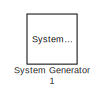
[diagram: root canvas - part 1/3, top center region]
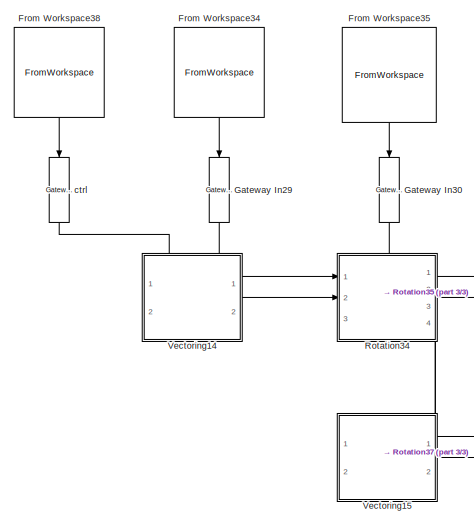
[diagram: root canvas - part 2/3, middle left region]
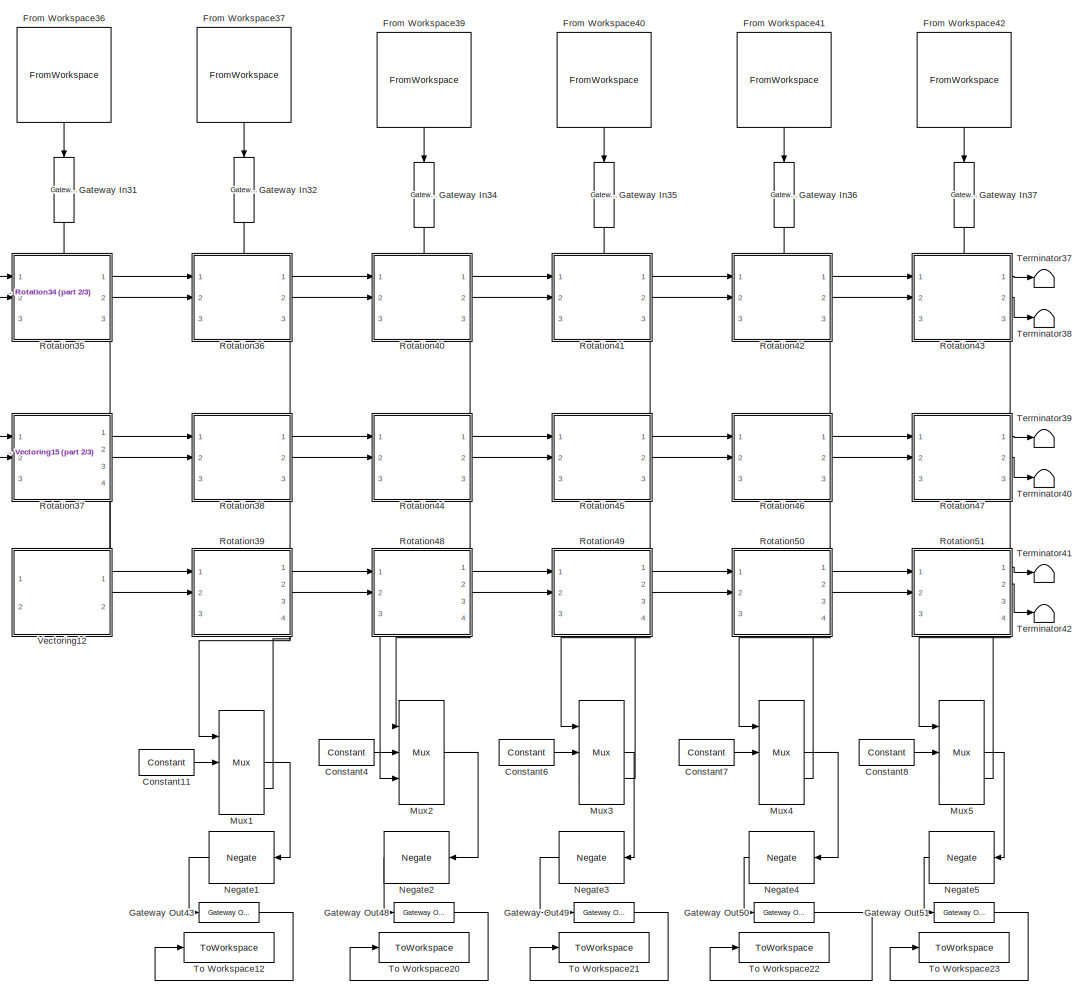
[diagram: root canvas - part 3/3, center side, full height]
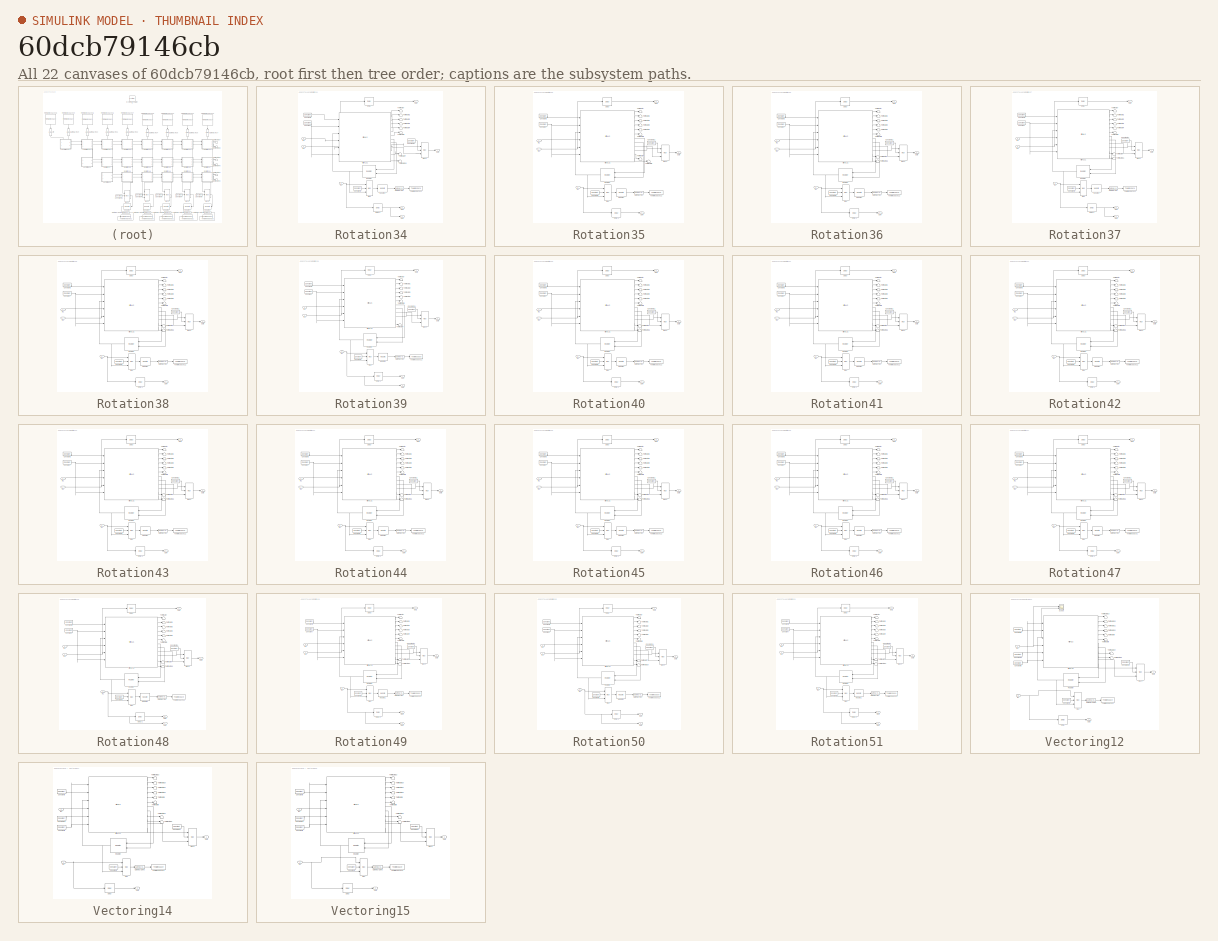
[diagram: thumbnail index - all 22 canvases of the model, root first then tree order]
MODEL slx_60dcb79146cb
KIND model
CONFIG AbsTol = auto
CONFIG EnableMultiTasking = off
CONFIG FixedStep = auto
CONFIG MaxStep = auto
CONFIG MinStep = auto
CONFIG RelTol = 1e-3
CONFIG SampleTimeConstraint = Unconstrained
CONFIG SolverName = VariableStepAuto
CONFIG StartTime = 0.0
CONFIG StopTime = 10.0
BLOCK [Reference]  System Generator1  REF=xbsIndex_r4/ System Generator
  AttributesFormatString = System\nGenerator
  Ports = []
  SourceBlock = xbsIndex_r4/ System Generator
  SourceType = Xilinx System Generator Block
  Tag = genX
  UserDataPersistent = on
BLOCK [Reference] Constant11  REF=hdlBasic/Constant
  Ports = [0, 1]
  SourceBlock = hdlBasic/Constant
  SourceType = Constant Block Block
BLOCK [Reference] Constant4  REF=hdlBasic/Constant
  Ports = [0, 1]
  SourceBlock = hdlBasic/Constant
  SourceType = Constant Block Block
BLOCK [Reference] Constant6  REF=hdlBasic/Constant
  Ports = [0, 1]
  SourceBlock = hdlBasic/Constant
  SourceType = Constant Block Block
BLOCK [Reference] Constant7  REF=hdlBasic/Constant
  Ports = [0, 1]
  SourceBlock = hdlBasic/Constant
  SourceType = Constant Block Block
BLOCK [Reference] Constant8  REF=hdlBasic/Constant
  Ports = [0, 1]
  SourceBlock = hdlBasic/Constant
  SourceType = Constant Block Block
BLOCK [FromWorkspace] From Workspace34
  NameLocation = left
  VariableName = Acol1
BLOCK [FromWorkspace] From Workspace35
  NameLocation = left
  VariableName = Acol2
BLOCK [FromWorkspace] From Workspace36
  NameLocation = left
  VariableName = Acol3
BLOCK [FromWorkspace] From Workspace37
  NameLocation = left
  VariableName = Acol4
BLOCK [FromWorkspace] From Workspace38
  NameLocation = left
  VariableName = ctrl_t
BLOCK [FromWorkspace] From Workspace39
  NameLocation = left
  VariableName = Icol1_t
BLOCK [FromWorkspace] From Workspace40
  NameLocation = left
  VariableName = Icol2_t
BLOCK [FromWorkspace] From Workspace41
  NameLocation = left
  VariableName = Icol3_t
BLOCK [FromWorkspace] From Workspace42
  NameLocation = left
  VariableName = Icol4_t
BLOCK [Reference] Gateway In29  REF=hdlBasic/Gateway In
  NameLocation = left
  Ports = [1, 1]
  SourceBlock = hdlBasic/Gateway In
  SourceType = Gateway In Block
BLOCK [Reference] Gateway In30  REF=hdlBasic/Gateway In
  NameLocation = left
  Ports = [1, 1]
  SourceBlock = hdlBasic/Gateway In
  SourceType = Gateway In Block
BLOCK [Reference] Gateway In31  REF=hdlBasic/Gateway In
  NameLocation = left
  Ports = [1, 1]
  SourceBlock = hdlBasic/Gateway In
  SourceType = Gateway In Block
BLOCK [Reference] Gateway In32  REF=hdlBasic/Gateway In
  NameLocation = left
  Ports = [1, 1]
  SourceBlock = hdlBasic/Gateway In
  SourceType = Gateway In Block
BLOCK [Reference] Gateway In34  REF=hdlBasic/Gateway In
  NameLocation = left
  Ports = [1, 1]
  SourceBlock = hdlBasic/Gateway In
  SourceType = Gateway In Block
BLOCK [Reference] Gateway In35  REF=hdlBasic/Gateway In
  NameLocation = left
  Ports = [1, 1]
  SourceBlock = hdlBasic/Gateway In
  SourceType = Gateway In Block
BLOCK [Reference] Gateway In36  REF=hdlBasic/Gateway In
  NameLocation = left
  Ports = [1, 1]
  SourceBlock = hdlBasic/Gateway In
  SourceType = Gateway In Block
BLOCK [Reference] Gateway In37  REF=hdlBasic/Gateway In
  NameLocation = left
  Ports = [1, 1]
  SourceBlock = hdlBasic/Gateway In
  SourceType = Gateway In Block
BLOCK [Reference] Gateway Out43  REF=hdlBasic/Gateway Out
  Ports = [1, 1]
  SourceBlock = hdlBasic/Gateway Out
  SourceType = Gateway Out Block
BLOCK [Reference] Gateway Out48  REF=hdlBasic/Gateway Out
  Ports = [1, 1]
  SourceBlock = hdlBasic/Gateway Out
  SourceType = Gateway Out Block
BLOCK [Reference] Gateway Out49  REF=hdlBasic/Gateway Out
  Ports = [1, 1]
  SourceBlock = hdlBasic/Gateway Out
  SourceType = Gateway Out Block
BLOCK [Reference] Gateway Out50  REF=hdlBasic/Gateway Out
  Ports = [1, 1]
  SourceBlock = hdlBasic/Gateway Out
  SourceType = Gateway Out Block
BLOCK [Reference] Gateway Out51  REF=hdlBasic/Gateway Out
  Ports = [1, 1]
  SourceBlock = hdlBasic/Gateway Out
  SourceType = Gateway Out Block
BLOCK [Reference] Mux1  REF=hdlBasic/Mux
  Ports = [3, 1]
  SourceBlock = hdlBasic/Mux
  SourceType = Bus Multiplexer Block
BLOCK [Reference] Mux2  REF=hdlBasic/Mux
  Ports = [3, 1]
  SourceBlock = hdlBasic/Mux
  SourceType = Bus Multiplexer Block
BLOCK [Reference] Mux3  REF=hdlBasic/Mux
  Ports = [3, 1]
  SourceBlock = hdlBasic/Mux
  SourceType = Bus Multiplexer Block
BLOCK [Reference] Mux4  REF=hdlBasic/Mux
  Ports = [3, 1]
  SourceBlock = hdlBasic/Mux
  SourceType = Bus Multiplexer Block
BLOCK [Reference] Mux5  REF=hdlBasic/Mux
  Ports = [3, 1]
  SourceBlock = hdlBasic/Mux
  SourceType = Bus Multiplexer Block
BLOCK [Reference] Negate1  REF=hdlBasic/Negate
  NameLocation = top
  Ports = [1, 1]
  SourceBlock = hdlBasic/Negate
  SourceType = Negate Block Block
BLOCK [Reference] Negate2  REF=hdlBasic/Negate
  NameLocation = top
  Ports = [1, 1]
  SourceBlock = hdlBasic/Negate
  SourceType = Negate Block Block
BLOCK [Reference] Negate3  REF=hdlBasic/Negate
  NameLocation = top
  Ports = [1, 1]
  SourceBlock = hdlBasic/Negate
  SourceType = Negate Block Block
BLOCK [Reference] Negate4  REF=hdlBasic/Negate
  NameLocation = top
  Ports = [1, 1]
  SourceBlock = hdlBasic/Negate
  SourceType = Negate Block Block
BLOCK [Reference] Negate5  REF=hdlBasic/Negate
  NameLocation = top
  Ports = [1, 1]
  SourceBlock = hdlBasic/Negate
  SourceType = Negate Block Block
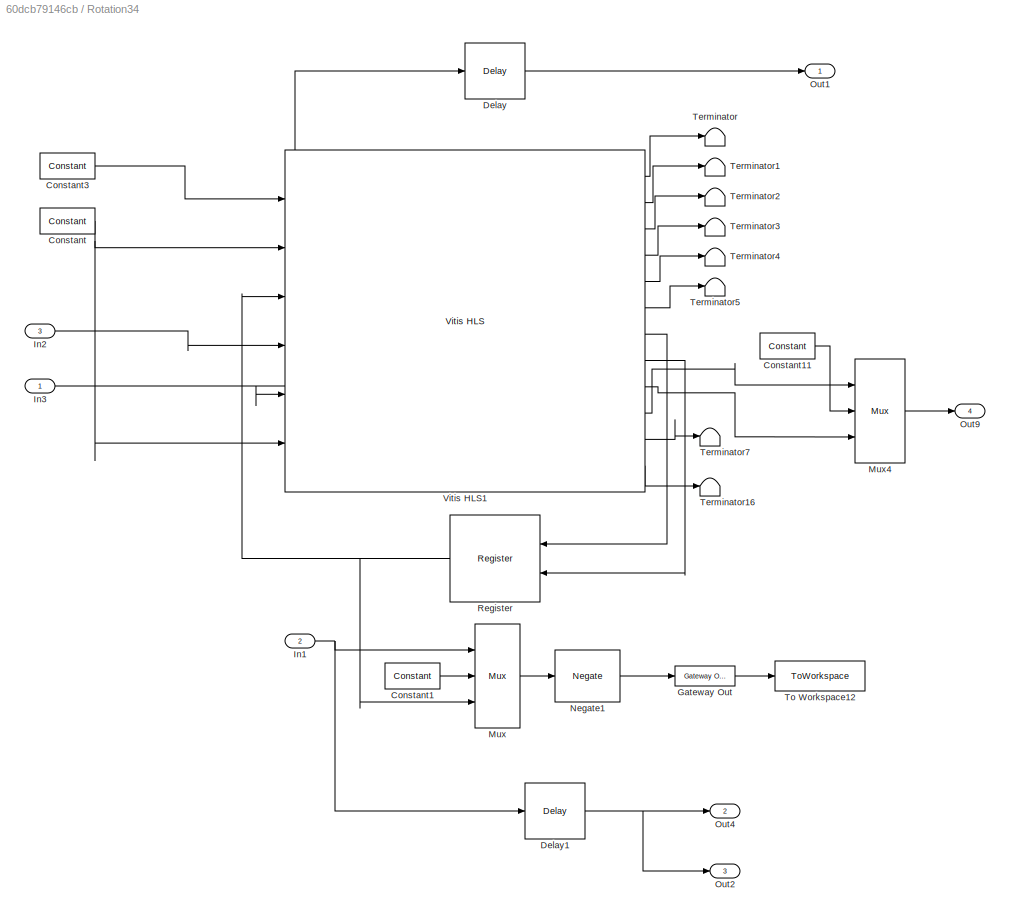
BLOCK [SubSystem] Rotation34
  PortSchema = {"entries":[{"content":{"sides":[{"content":{"connectorIds":["In1","In2"]},"type":"ConnectorPlacement.EquallySpacedRectSide","uuid":"b989bfd3-647b-468d-a24b-67c5817c2fb9"},{"content":{"connectorIds":["Out1","Out2"],"side":"RIGHT"},"type":"ConnectorPlacement.EquallySpacedRectSide","uuid":"15839450-c6b9-4b4c-b490-793a0225ad70"},{"content":{"connectorIds":["In3"],"side":"TOP"},"type":"ConnectorPlacem...<+415ch>  <repeated x7 — deduplicated; at blocks: Rotation34, Rotation37, Rotation39, Rotation48, Rotation49, Rotation50, Rotation51>
  Ports = [3, 4]
  RequestExecContextInheritance = off
BLOCK [Reference] Rotation34/Constant  REF=hdlBasic/Constant
  Ports = [0, 1]
  SourceBlock = hdlBasic/Constant
  SourceType = Constant Block Block
BLOCK [Reference] Rotation34/Constant1  REF=hdlBasic/Constant
  Ports = [0, 1]
  SourceBlock = hdlBasic/Constant
  SourceType = Constant Block Block
BLOCK [Reference] Rotation34/Constant11  REF=hdlBasic/Constant
  Ports = [0, 1]
  SourceBlock = hdlBasic/Constant
  SourceType = Constant Block Block
BLOCK [Reference] Rotation34/Constant3  REF=hdlBasic/Constant
  Ports = [0, 1]
  SourceBlock = hdlBasic/Constant
  SourceType = Constant Block Block
BLOCK [Reference] Rotation34/Delay  REF=hdlBasic/Delay
  Ports = [1, 1]
  SourceBlock = hdlBasic/Delay
  SourceType = Delay Block
BLOCK [Reference] Rotation34/Delay1  REF=hdlBasic/Delay
  Ports = [1, 1]
  SourceBlock = hdlBasic/Delay
  SourceType = Delay Block
BLOCK [Reference] Rotation34/Gateway Out  REF=hdlBasic/Gateway Out
  Ports = [1, 1]
  SourceBlock = hdlBasic/Gateway Out
  SourceType = Gateway Out Block
BLOCK [Inport] Rotation34/In1
  IconDisplay = Signal name
  Port = 2
BLOCK [Inport] Rotation34/In2
  IconDisplay = Signal name
  Port = 3
BLOCK [Inport] Rotation34/In3
  IconDisplay = Signal name
BLOCK [Reference] Rotation34/Mux  REF=hdlBasic/Mux
  Ports = [3, 1]
  SourceBlock = hdlBasic/Mux
  SourceType = Bus Multiplexer Block
BLOCK [Reference] Rotation34/Mux4  REF=hdlBasic/Mux
  Ports = [3, 1]
  SourceBlock = hdlBasic/Mux
  SourceType = Bus Multiplexer Block
BLOCK [Reference] Rotation34/Negate1  REF=hdlBasic/Negate
  Ports = [1, 1]
  SourceBlock = hdlBasic/Negate
  SourceType = Negate Block Block
BLOCK [Outport] Rotation34/Out1
BLOCK [Outport] Rotation34/Out2
  Port = 3
BLOCK [Outport] Rotation34/Out4
  Port = 2
BLOCK [Outport] Rotation34/Out9
  Port = 4
BLOCK [Reference] Rotation34/Register  REF=hdlBasic/Register
  NameLocation = top
  Ports = [2, 1]
  SourceBlock = hdlBasic/Register
  SourceType = Register Block
BLOCK [Terminator] Rotation34/Terminator
BLOCK [Terminator] Rotation34/Terminator1
BLOCK [Terminator] Rotation34/Terminator16
BLOCK [Terminator] Rotation34/Terminator2
BLOCK [Terminator] Rotation34/Terminator3
BLOCK [Terminator] Rotation34/Terminator4
BLOCK [Terminator] Rotation34/Terminator5
BLOCK [Terminator] Rotation34/Terminator7
BLOCK [ToWorkspace] Rotation34/To Workspace12
  FixptAsFi = on
  MaxDataPoints = inf
  Ports = [1]
  SampleTime = -1
  SaveFormat = Timeseries
  VariableName = simout20
BLOCK [Reference] Rotation34/Vitis HLS1  REF=hdlBasic/Vitis HLS
  Ports = [6, 12]
  SourceBlock = hdlBasic/Vitis HLS
  SourceType = Xilinx High Level Synthesis Block
BLOCK [SubSystem] Rotation35
  PortSchema = {"entries":[{"content":{"sides":[{"content":{"connectorIds":["In1","In2"]},"type":"ConnectorPlacement.EquallySpacedRectSide","uuid":"b989bfd3-647b-468d-a24b-67c5817c2fb9"},{"content":{"connectorIds":["Out1","Out2"],"side":"RIGHT"},"type":"ConnectorPlacement.EquallySpacedRectSide","uuid":"15839450-c6b9-4b4c-b490-793a0225ad70"},{"content":{"connectorIds":["In3"],"side":"TOP"},"type":"ConnectorPlacem...<+408ch>  <repeated x11 — deduplicated; at blocks: Rotation35, Rotation36, Rotation38, Rotation40, Rotation41, Rotation42, Rotation43, Rotation44, Rotation45, Rotation46, Rotation47>
  Ports = [3, 3]
  RequestExecContextInheritance = off
BLOCK [Reference] Rotation35/Constant  REF=hdlBasic/Constant
  Ports = [0, 1]
  SourceBlock = hdlBasic/Constant
  SourceType = Constant Block Block
BLOCK [Reference] Rotation35/Constant1  REF=hdlBasic/Constant
  Ports = [0, 1]
  SourceBlock = hdlBasic/Constant
  SourceType = Constant Block Block
BLOCK [Reference] Rotation35/Constant11  REF=hdlBasic/Constant
  Ports = [0, 1]
  SourceBlock = hdlBasic/Constant
  SourceType = Constant Block Block
BLOCK [Reference] Rotation35/Constant3  REF=hdlBasic/Constant
  Ports = [0, 1]
  SourceBlock = hdlBasic/Constant
  SourceType = Constant Block Block
BLOCK [Reference] Rotation35/Delay  REF=hdlBasic/Delay
  Ports = [1, 1]
  SourceBlock = hdlBasic/Delay
  SourceType = Delay Block
BLOCK [Reference] Rotation35/Delay1  REF=hdlBasic/Delay
  Ports = [1, 1]
  SourceBlock = hdlBasic/Delay
  SourceType = Delay Block
BLOCK [Reference] Rotation35/Gateway Out  REF=hdlBasic/Gateway Out
  Ports = [1, 1]
  SourceBlock = hdlBasic/Gateway Out
  SourceType = Gateway Out Block
BLOCK [Inport] Rotation35/In1
  IconDisplay = Signal name
  Port = 2
BLOCK [Inport] Rotation35/In2
  IconDisplay = Signal name
  Port = 3
BLOCK [Inport] Rotation35/In3
  IconDisplay = Signal name
BLOCK [Reference] Rotation35/Mux  REF=hdlBasic/Mux
  Ports = [3, 1]
  SourceBlock = hdlBasic/Mux
  SourceType = Bus Multiplexer Block
BLOCK [Reference] Rotation35/Mux4  REF=hdlBasic/Mux
  Ports = [3, 1]
  SourceBlock = hdlBasic/Mux
  SourceType = Bus Multiplexer Block
BLOCK [Reference] Rotation35/Negate1  REF=hdlBasic/Negate
  Ports = [1, 1]
  SourceBlock = hdlBasic/Negate
  SourceType = Negate Block Block
BLOCK [Outport] Rotation35/Out1
BLOCK [Outport] Rotation35/Out4
  Port = 2
BLOCK [Outport] Rotation35/Out9
  Port = 3
BLOCK [Reference] Rotation35/Register  REF=hdlBasic/Register
  NameLocation = top
  Ports = [2, 1]
  SourceBlock = hdlBasic/Register
  SourceType = Register Block
BLOCK [Terminator] Rotation35/Terminator
BLOCK [Terminator] Rotation35/Terminator1
BLOCK [Terminator] Rotation35/Terminator2
BLOCK [Terminator] Rotation35/Terminator3
BLOCK [Terminator] Rotation35/Terminator4
BLOCK [Terminator] Rotation35/Terminator5
BLOCK [Terminator] Rotation35/Terminator6
BLOCK [Terminator] Rotation35/Terminator7
BLOCK [ToWorkspace] Rotation35/To Workspace12
  FixptAsFi = on
  MaxDataPoints = inf
  Ports = [1]
  SampleTime = -1
  SaveFormat = Timeseries
  VariableName = simout21
BLOCK [Reference] Rotation35/Vitis HLS1  REF=hdlBasic/Vitis HLS
  Ports = [6, 12]
  SourceBlock = hdlBasic/Vitis HLS
  SourceType = Xilinx High Level Synthesis Block
BLOCK [SubSystem] Rotation36
  Ports = [3, 3]
  RequestExecContextInheritance = off
BLOCK [Reference] Rotation36/Constant  REF=hdlBasic/Constant
  Ports = [0, 1]
  SourceBlock = hdlBasic/Constant
  SourceType = Constant Block Block
BLOCK [Reference] Rotation36/Constant1  REF=hdlBasic/Constant
  Ports = [0, 1]
  SourceBlock = hdlBasic/Constant
  SourceType = Constant Block Block
BLOCK [Reference] Rotation36/Constant11  REF=hdlBasic/Constant
  Ports = [0, 1]
  SourceBlock = hdlBasic/Constant
  SourceType = Constant Block Block
BLOCK [Reference] Rotation36/Constant3  REF=hdlBasic/Constant
  Ports = [0, 1]
  SourceBlock = hdlBasic/Constant
  SourceType = Constant Block Block
BLOCK [Reference] Rotation36/Delay  REF=hdlBasic/Delay
  Ports = [1, 1]
  SourceBlock = hdlBasic/Delay
  SourceType = Delay Block
BLOCK [Reference] Rotation36/Delay1  REF=hdlBasic/Delay
  Ports = [1, 1]
  SourceBlock = hdlBasic/Delay
  SourceType = Delay Block
BLOCK [Reference] Rotation36/Gateway Out  REF=hdlBasic/Gateway Out
  Ports = [1, 1]
  SourceBlock = hdlBasic/Gateway Out
  SourceType = Gateway Out Block
BLOCK [Inport] Rotation36/In1
  IconDisplay = Signal name
  Port = 2
BLOCK [Inport] Rotation36/In2
  IconDisplay = Signal name
  Port = 3
BLOCK [Inport] Rotation36/In3
  IconDisplay = Signal name
BLOCK [Reference] Rotation36/Mux  REF=hdlBasic/Mux
  Ports = [3, 1]
  SourceBlock = hdlBasic/Mux
  SourceType = Bus Multiplexer Block
BLOCK [Reference] Rotation36/Mux4  REF=hdlBasic/Mux
  Ports = [3, 1]
  SourceBlock = hdlBasic/Mux
  SourceType = Bus Multiplexer Block
BLOCK [Reference] Rotation36/Negate1  REF=hdlBasic/Negate
  Ports = [1, 1]
  SourceBlock = hdlBasic/Negate
  SourceType = Negate Block Block
BLOCK [Outport] Rotation36/Out1
BLOCK [Outport] Rotation36/Out4
  Port = 2
BLOCK [Outport] Rotation36/Out9
  Port = 3
BLOCK [Reference] Rotation36/Register  REF=hdlBasic/Register
  NameLocation = top
  Ports = [2, 1]
  SourceBlock = hdlBasic/Register
  SourceType = Register Block
BLOCK [Terminator] Rotation36/Terminator
BLOCK [Terminator] Rotation36/Terminator1
BLOCK [Terminator] Rotation36/Terminator16
BLOCK [Terminator] Rotation36/Terminator2
BLOCK [Terminator] Rotation36/Terminator3
BLOCK [Terminator] Rotation36/Terminator4
BLOCK [Terminator] Rotation36/Terminator5
BLOCK [Terminator] Rotation36/Terminator7
BLOCK [ToWorkspace] Rotation36/To Workspace12
  FixptAsFi = on
  MaxDataPoints = inf
  Ports = [1]
  SampleTime = -1
  SaveFormat = Timeseries
  VariableName = simout22
BLOCK [Reference] Rotation36/Vitis HLS1  REF=hdlBasic/Vitis HLS
  Ports = [6, 12]
  SourceBlock = hdlBasic/Vitis HLS
  SourceType = Xilinx High Level Synthesis Block
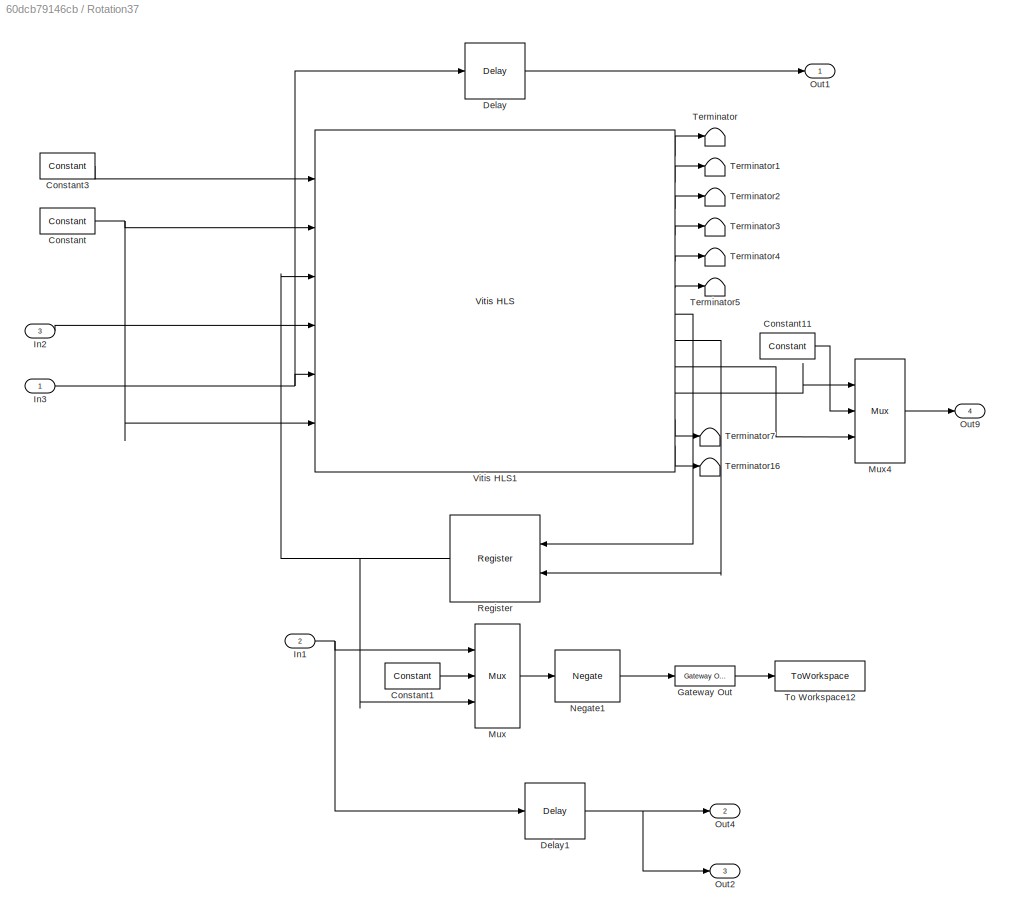
BLOCK [SubSystem] Rotation37
  Ports = [3, 4]
  RequestExecContextInheritance = off
BLOCK [Reference] Rotation37/Constant  REF=hdlBasic/Constant
  Ports = [0, 1]
  SourceBlock = hdlBasic/Constant
  SourceType = Constant Block Block
BLOCK [Reference] Rotation37/Constant1  REF=hdlBasic/Constant
  Ports = [0, 1]
  SourceBlock = hdlBasic/Constant
  SourceType = Constant Block Block
BLOCK [Reference] Rotation37/Constant11  REF=hdlBasic/Constant
  Ports = [0, 1]
  SourceBlock = hdlBasic/Constant
  SourceType = Constant Block Block
BLOCK [Reference] Rotation37/Constant3  REF=hdlBasic/Constant
  Ports = [0, 1]
  SourceBlock = hdlBasic/Constant
  SourceType = Constant Block Block
BLOCK [Reference] Rotation37/Delay  REF=hdlBasic/Delay
  Ports = [1, 1]
  SourceBlock = hdlBasic/Delay
  SourceType = Delay Block
BLOCK [Reference] Rotation37/Delay1  REF=hdlBasic/Delay
  Ports = [1, 1]
  SourceBlock = hdlBasic/Delay
  SourceType = Delay Block
BLOCK [Reference] Rotation37/Gateway Out  REF=hdlBasic/Gateway Out
  Ports = [1, 1]
  SourceBlock = hdlBasic/Gateway Out
  SourceType = Gateway Out Block
BLOCK [Inport] Rotation37/In1
  IconDisplay = Signal name
  Port = 2
BLOCK [Inport] Rotation37/In2
  IconDisplay = Signal name
  Port = 3
BLOCK [Inport] Rotation37/In3
  IconDisplay = Signal name
BLOCK [Reference] Rotation37/Mux  REF=hdlBasic/Mux
  Ports = [3, 1]
  SourceBlock = hdlBasic/Mux
  SourceType = Bus Multiplexer Block
BLOCK [Reference] Rotation37/Mux4  REF=hdlBasic/Mux
  Ports = [3, 1]
  SourceBlock = hdlBasic/Mux
  SourceType = Bus Multiplexer Block
BLOCK [Reference] Rotation37/Negate1  REF=hdlBasic/Negate
  Ports = [1, 1]
  SourceBlock = hdlBasic/Negate
  SourceType = Negate Block Block
BLOCK [Outport] Rotation37/Out1
BLOCK [Outport] Rotation37/Out2
  Port = 3
BLOCK [Outport] Rotation37/Out4
  Port = 2
BLOCK [Outport] Rotation37/Out9
  Port = 4
BLOCK [Reference] Rotation37/Register  REF=hdlBasic/Register
  NameLocation = top
  Ports = [2, 1]
  SourceBlock = hdlBasic/Register
  SourceType = Register Block
BLOCK [Terminator] Rotation37/Terminator
BLOCK [Terminator] Rotation37/Terminator1
BLOCK [Terminator] Rotation37/Terminator16
BLOCK [Terminator] Rotation37/Terminator2
BLOCK [Terminator] Rotation37/Terminator3
BLOCK [Terminator] Rotation37/Terminator4
BLOCK [Terminator] Rotation37/Terminator5
BLOCK [Terminator] Rotation37/Terminator7
BLOCK [ToWorkspace] Rotation37/To Workspace12
  FixptAsFi = on
  MaxDataPoints = inf
  Ports = [1]
  SampleTime = -1
  SaveFormat = Timeseries
  VariableName = simout24
BLOCK [Reference] Rotation37/Vitis HLS1  REF=hdlBasic/Vitis HLS
  Ports = [6, 12]
  SourceBlock = hdlBasic/Vitis HLS
  SourceType = Xilinx High Level Synthesis Block
BLOCK [SubSystem] Rotation38
  Ports = [3, 3]
  RequestExecContextInheritance = off
BLOCK [Reference] Rotation38/Constant  REF=hdlBasic/Constant
  Ports = [0, 1]
  SourceBlock = hdlBasic/Constant
  SourceType = Constant Block Block
BLOCK [Reference] Rotation38/Constant1  REF=hdlBasic/Constant
  Ports = [0, 1]
  SourceBlock = hdlBasic/Constant
  SourceType = Constant Block Block
BLOCK [Reference] Rotation38/Constant11  REF=hdlBasic/Constant
  Ports = [0, 1]
  SourceBlock = hdlBasic/Constant
  SourceType = Constant Block Block
BLOCK [Reference] Rotation38/Constant3  REF=hdlBasic/Constant
  Ports = [0, 1]
  SourceBlock = hdlBasic/Constant
  SourceType = Constant Block Block
BLOCK [Reference] Rotation38/Delay  REF=hdlBasic/Delay
  Ports = [1, 1]
  SourceBlock = hdlBasic/Delay
  SourceType = Delay Block
BLOCK [Reference] Rotation38/Delay1  REF=hdlBasic/Delay
  Ports = [1, 1]
  SourceBlock = hdlBasic/Delay
  SourceType = Delay Block
BLOCK [Reference] Rotation38/Gateway Out  REF=hdlBasic/Gateway Out
  Ports = [1, 1]
  SourceBlock = hdlBasic/Gateway Out
  SourceType = Gateway Out Block
BLOCK [Inport] Rotation38/In1
  IconDisplay = Signal name
  Port = 2
BLOCK [Inport] Rotation38/In2
  IconDisplay = Signal name
  Port = 3
BLOCK [Inport] Rotation38/In3
  IconDisplay = Signal name
BLOCK [Reference] Rotation38/Mux  REF=hdlBasic/Mux
  Ports = [3, 1]
  SourceBlock = hdlBasic/Mux
  SourceType = Bus Multiplexer Block
BLOCK [Reference] Rotation38/Mux4  REF=hdlBasic/Mux
  Ports = [3, 1]
  SourceBlock = hdlBasic/Mux
  SourceType = Bus Multiplexer Block
BLOCK [Reference] Rotation38/Negate1  REF=hdlBasic/Negate
  Ports = [1, 1]
  SourceBlock = hdlBasic/Negate
  SourceType = Negate Block Block
BLOCK [Outport] Rotation38/Out1
BLOCK [Outport] Rotation38/Out4
  Port = 2
BLOCK [Outport] Rotation38/Out9
  Port = 3
BLOCK [Reference] Rotation38/Register  REF=hdlBasic/Register
  NameLocation = top
  Ports = [2, 1]
  SourceBlock = hdlBasic/Register
  SourceType = Register Block
BLOCK [Terminator] Rotation38/Terminator
BLOCK [Terminator] Rotation38/Terminator1
BLOCK [Terminator] Rotation38/Terminator16
BLOCK [Terminator] Rotation38/Terminator2
BLOCK [Terminator] Rotation38/Terminator3
BLOCK [Terminator] Rotation38/Terminator4
BLOCK [Terminator] Rotation38/Terminator5
BLOCK [Terminator] Rotation38/Terminator7
BLOCK [ToWorkspace] Rotation38/To Workspace12
  FixptAsFi = on
  MaxDataPoints = inf
  Ports = [1]
  SampleTime = -1
  SaveFormat = Timeseries
  VariableName = simout25
BLOCK [Reference] Rotation38/Vitis HLS1  REF=hdlBasic/Vitis HLS
  Ports = [6, 12]
  SourceBlock = hdlBasic/Vitis HLS
  SourceType = Xilinx High Level Synthesis Block
BLOCK [SubSystem] Rotation39
  Ports = [3, 4]
  RequestExecContextInheritance = off
BLOCK [Reference] Rotation39/Constant  REF=hdlBasic/Constant
  Ports = [0, 1]
  SourceBlock = hdlBasic/Constant
  SourceType = Constant Block Block
BLOCK [Reference] Rotation39/Constant1  REF=hdlBasic/Constant
  Ports = [0, 1]
  SourceBlock = hdlBasic/Constant
  SourceType = Constant Block Block
BLOCK [Reference] Rotation39/Constant11  REF=hdlBasic/Constant
  Ports = [0, 1]
  SourceBlock = hdlBasic/Constant
  SourceType = Constant Block Block
BLOCK [Reference] Rotation39/Constant3  REF=hdlBasic/Constant
  Ports = [0, 1]
  SourceBlock = hdlBasic/Constant
  SourceType = Constant Block Block
BLOCK [Reference] Rotation39/Delay  REF=hdlBasic/Delay
  Ports = [1, 1]
  SourceBlock = hdlBasic/Delay
  SourceType = Delay Block
BLOCK [Reference] Rotation39/Delay1  REF=hdlBasic/Delay
  Ports = [1, 1]
  SourceBlock = hdlBasic/Delay
  SourceType = Delay Block
BLOCK [Reference] Rotation39/Gateway Out  REF=hdlBasic/Gateway Out
  Ports = [1, 1]
  SourceBlock = hdlBasic/Gateway Out
  SourceType = Gateway Out Block
BLOCK [Inport] Rotation39/In1
  IconDisplay = Signal name
  Port = 2
BLOCK [Inport] Rotation39/In2
  IconDisplay = Signal name
  Port = 3
BLOCK [Inport] Rotation39/In3
  IconDisplay = Signal name
BLOCK [Reference] Rotation39/Mux  REF=hdlBasic/Mux
  Ports = [3, 1]
  SourceBlock = hdlBasic/Mux
  SourceType = Bus Multiplexer Block
BLOCK [Reference] Rotation39/Mux4  REF=hdlBasic/Mux
  Ports = [3, 1]
  SourceBlock = hdlBasic/Mux
  SourceType = Bus Multiplexer Block
BLOCK [Reference] Rotation39/Negate1  REF=hdlBasic/Negate
  Ports = [1, 1]
  SourceBlock = hdlBasic/Negate
  SourceType = Negate Block Block
BLOCK [Outport] Rotation39/Out1
BLOCK [Outport] Rotation39/Out2
  Port = 4
BLOCK [Outport] Rotation39/Out4
  Port = 2
BLOCK [Outport] Rotation39/Out9
  Port = 3
BLOCK [Reference] Rotation39/Register  REF=hdlBasic/Register
  NameLocation = top
  Ports = [2, 1]
  SourceBlock = hdlBasic/Register
  SourceType = Register Block
BLOCK [Terminator] Rotation39/Terminator
BLOCK [Terminator] Rotation39/Terminator1
BLOCK [Terminator] Rotation39/Terminator2
BLOCK [Terminator] Rotation39/Terminator3
BLOCK [Terminator] Rotation39/Terminator4
BLOCK [Terminator] Rotation39/Terminator5
BLOCK [Terminator] Rotation39/Terminator7
BLOCK [ToWorkspace] Rotation39/To Workspace12
  FixptAsFi = on
  MaxDataPoints = inf
  Ports = [1]
  SampleTime = -1
  SaveFormat = Timeseries
  VariableName = simout27
BLOCK [Reference] Rotation39/Vitis HLS1  REF=hdlBasic/Vitis HLS
  Ports = [6, 12]
  SourceBlock = hdlBasic/Vitis HLS
  SourceType = Xilinx High Level Synthesis Block
BLOCK [SubSystem] Rotation40
  Ports = [3, 3]
  RequestExecContextInheritance = off
BLOCK [Reference] Rotation40/Constant  REF=hdlBasic/Constant
  Ports = [0, 1]
  SourceBlock = hdlBasic/Constant
  SourceType = Constant Block Block
BLOCK [Reference] Rotation40/Constant1  REF=hdlBasic/Constant
  Ports = [0, 1]
  SourceBlock = hdlBasic/Constant
  SourceType = Constant Block Block
BLOCK [Reference] Rotation40/Constant11  REF=hdlBasic/Constant
  Ports = [0, 1]
  SourceBlock = hdlBasic/Constant
  SourceType = Constant Block Block
BLOCK [Reference] Rotation40/Constant3  REF=hdlBasic/Constant
  Ports = [0, 1]
  SourceBlock = hdlBasic/Constant
  SourceType = Constant Block Block
BLOCK [Reference] Rotation40/Delay  REF=hdlBasic/Delay
  Ports = [1, 1]
  SourceBlock = hdlBasic/Delay
  SourceType = Delay Block
BLOCK [Reference] Rotation40/Delay1  REF=hdlBasic/Delay
  Ports = [1, 1]
  SourceBlock = hdlBasic/Delay
  SourceType = Delay Block
BLOCK [Reference] Rotation40/Gateway Out  REF=hdlBasic/Gateway Out
  Ports = [1, 1]
  SourceBlock = hdlBasic/Gateway Out
  SourceType = Gateway Out Block
BLOCK [Inport] Rotation40/In1
  IconDisplay = Signal name
  Port = 2
BLOCK [Inport] Rotation40/In2
  IconDisplay = Signal name
  Port = 3
BLOCK [Inport] Rotation40/In3
  IconDisplay = Signal name
BLOCK [Reference] Rotation40/Mux  REF=hdlBasic/Mux
  Ports = [3, 1]
  SourceBlock = hdlBasic/Mux
  SourceType = Bus Multiplexer Block
BLOCK [Reference] Rotation40/Mux4  REF=hdlBasic/Mux
  Ports = [3, 1]
  SourceBlock = hdlBasic/Mux
  SourceType = Bus Multiplexer Block
BLOCK [Reference] Rotation40/Negate1  REF=hdlBasic/Negate
  Ports = [1, 1]
  SourceBlock = hdlBasic/Negate
  SourceType = Negate Block Block
BLOCK [Outport] Rotation40/Out1
BLOCK [Outport] Rotation40/Out4
  Port = 2
BLOCK [Outport] Rotation40/Out9
  Port = 3
BLOCK [Reference] Rotation40/Register  REF=hdlBasic/Register
  NameLocation = top
  Ports = [2, 1]
  SourceBlock = hdlBasic/Register
  SourceType = Register Block
BLOCK [Terminator] Rotation40/Terminator
BLOCK [Terminator] Rotation40/Terminator1
BLOCK [Terminator] Rotation40/Terminator16
BLOCK [Terminator] Rotation40/Terminator2
BLOCK [Terminator] Rotation40/Terminator3
BLOCK [Terminator] Rotation40/Terminator4
BLOCK [Terminator] Rotation40/Terminator5
BLOCK [Terminator] Rotation40/Terminator7
BLOCK [ToWorkspace] Rotation40/To Workspace12
  FixptAsFi = on
  MaxDataPoints = inf
  Ports = [1]
  SampleTime = -1
  SaveFormat = Timeseries
  VariableName = simout28
BLOCK [Reference] Rotation40/Vitis HLS1  REF=hdlBasic/Vitis HLS
  Ports = [6, 12]
  SourceBlock = hdlBasic/Vitis HLS
  SourceType = Xilinx High Level Synthesis Block
BLOCK [SubSystem] Rotation41
  Ports = [3, 3]
  RequestExecContextInheritance = off
BLOCK [Reference] Rotation41/Constant  REF=hdlBasic/Constant
  Ports = [0, 1]
  SourceBlock = hdlBasic/Constant
  SourceType = Constant Block Block
BLOCK [Reference] Rotation41/Constant1  REF=hdlBasic/Constant
  Ports = [0, 1]
  SourceBlock = hdlBasic/Constant
  SourceType = Constant Block Block
BLOCK [Reference] Rotation41/Constant11  REF=hdlBasic/Constant
  Ports = [0, 1]
  SourceBlock = hdlBasic/Constant
  SourceType = Constant Block Block
BLOCK [Reference] Rotation41/Constant3  REF=hdlBasic/Constant
  Ports = [0, 1]
  SourceBlock = hdlBasic/Constant
  SourceType = Constant Block Block
BLOCK [Reference] Rotation41/Delay  REF=hdlBasic/Delay
  Ports = [1, 1]
  SourceBlock = hdlBasic/Delay
  SourceType = Delay Block
BLOCK [Reference] Rotation41/Delay1  REF=hdlBasic/Delay
  Ports = [1, 1]
  SourceBlock = hdlBasic/Delay
  SourceType = Delay Block
BLOCK [Reference] Rotation41/Gateway Out  REF=hdlBasic/Gateway Out
  Ports = [1, 1]
  SourceBlock = hdlBasic/Gateway Out
  SourceType = Gateway Out Block
BLOCK [Inport] Rotation41/In1
  IconDisplay = Signal name
  Port = 2
BLOCK [Inport] Rotation41/In2
  IconDisplay = Signal name
  Port = 3
BLOCK [Inport] Rotation41/In3
  IconDisplay = Signal name
BLOCK [Reference] Rotation41/Mux  REF=hdlBasic/Mux
  Ports = [3, 1]
  SourceBlock = hdlBasic/Mux
  SourceType = Bus Multiplexer Block
BLOCK [Reference] Rotation41/Mux4  REF=hdlBasic/Mux
  Ports = [3, 1]
  SourceBlock = hdlBasic/Mux
  SourceType = Bus Multiplexer Block
BLOCK [Reference] Rotation41/Negate1  REF=hdlBasic/Negate
  Ports = [1, 1]
  SourceBlock = hdlBasic/Negate
  SourceType = Negate Block Block
BLOCK [Outport] Rotation41/Out1
BLOCK [Outport] Rotation41/Out4
  Port = 2
BLOCK [Outport] Rotation41/Out9
  Port = 3
BLOCK [Reference] Rotation41/Register  REF=hdlBasic/Register
  NameLocation = top
  Ports = [2, 1]
  SourceBlock = hdlBasic/Register
  SourceType = Register Block
BLOCK [Terminator] Rotation41/Terminator
BLOCK [Terminator] Rotation41/Terminator1
BLOCK [Terminator] Rotation41/Terminator16
BLOCK [Terminator] Rotation41/Terminator2
BLOCK [Terminator] Rotation41/Terminator3
BLOCK [Terminator] Rotation41/Terminator4
BLOCK [Terminator] Rotation41/Terminator5
BLOCK [Terminator] Rotation41/Terminator7
BLOCK [ToWorkspace] Rotation41/To Workspace12
  FixptAsFi = on
  MaxDataPoints = inf
  Ports = [1]
  SampleTime = -1
  SaveFormat = Timeseries
  VariableName = simout29
BLOCK [Reference] Rotation41/Vitis HLS1  REF=hdlBasic/Vitis HLS
  Ports = [6, 12]
  SourceBlock = hdlBasic/Vitis HLS
  SourceType = Xilinx High Level Synthesis Block
BLOCK [SubSystem] Rotation42
  Ports = [3, 3]
  RequestExecContextInheritance = off
BLOCK [Reference] Rotation42/Constant  REF=hdlBasic/Constant
  Ports = [0, 1]
  SourceBlock = hdlBasic/Constant
  SourceType = Constant Block Block
BLOCK [Reference] Rotation42/Constant1  REF=hdlBasic/Constant
  Ports = [0, 1]
  SourceBlock = hdlBasic/Constant
  SourceType = Constant Block Block
BLOCK [Reference] Rotation42/Constant11  REF=hdlBasic/Constant
  Ports = [0, 1]
  SourceBlock = hdlBasic/Constant
  SourceType = Constant Block Block
BLOCK [Reference] Rotation42/Constant3  REF=hdlBasic/Constant
  Ports = [0, 1]
  SourceBlock = hdlBasic/Constant
  SourceType = Constant Block Block
BLOCK [Reference] Rotation42/Delay  REF=hdlBasic/Delay
  Ports = [1, 1]
  SourceBlock = hdlBasic/Delay
  SourceType = Delay Block
BLOCK [Reference] Rotation42/Delay1  REF=hdlBasic/Delay
  Ports = [1, 1]
  SourceBlock = hdlBasic/Delay
  SourceType = Delay Block
BLOCK [Reference] Rotation42/Gateway Out  REF=hdlBasic/Gateway Out
  Ports = [1, 1]
  SourceBlock = hdlBasic/Gateway Out
  SourceType = Gateway Out Block
BLOCK [Inport] Rotation42/In1
  IconDisplay = Signal name
  Port = 2
BLOCK [Inport] Rotation42/In2
  IconDisplay = Signal name
  Port = 3
BLOCK [Inport] Rotation42/In3
  IconDisplay = Signal name
BLOCK [Reference] Rotation42/Mux  REF=hdlBasic/Mux
  Ports = [3, 1]
  SourceBlock = hdlBasic/Mux
  SourceType = Bus Multiplexer Block
BLOCK [Reference] Rotation42/Mux4  REF=hdlBasic/Mux
  Ports = [3, 1]
  SourceBlock = hdlBasic/Mux
  SourceType = Bus Multiplexer Block
BLOCK [Reference] Rotation42/Negate1  REF=hdlBasic/Negate
  Ports = [1, 1]
  SourceBlock = hdlBasic/Negate
  SourceType = Negate Block Block
BLOCK [Outport] Rotation42/Out1
BLOCK [Outport] Rotation42/Out4
  Port = 2
BLOCK [Outport] Rotation42/Out9
  Port = 3
BLOCK [Reference] Rotation42/Register  REF=hdlBasic/Register
  NameLocation = top
  Ports = [2, 1]
  SourceBlock = hdlBasic/Register
  SourceType = Register Block
BLOCK [Terminator] Rotation42/Terminator
BLOCK [Terminator] Rotation42/Terminator1
BLOCK [Terminator] Rotation42/Terminator16
BLOCK [Terminator] Rotation42/Terminator2
BLOCK [Terminator] Rotation42/Terminator3
BLOCK [Terminator] Rotation42/Terminator4
BLOCK [Terminator] Rotation42/Terminator5
BLOCK [Terminator] Rotation42/Terminator7
BLOCK [ToWorkspace] Rotation42/To Workspace12
  FixptAsFi = on
  MaxDataPoints = inf
  Ports = [1]
  SampleTime = -1
  SaveFormat = Timeseries
  VariableName = simout30
BLOCK [Reference] Rotation42/Vitis HLS1  REF=hdlBasic/Vitis HLS
  Ports = [6, 12]
  SourceBlock = hdlBasic/Vitis HLS
  SourceType = Xilinx High Level Synthesis Block
BLOCK [SubSystem] Rotation43
  Ports = [3, 3]
  RequestExecContextInheritance = off
BLOCK [Reference] Rotation43/Constant  REF=hdlBasic/Constant
  Ports = [0, 1]
  SourceBlock = hdlBasic/Constant
  SourceType = Constant Block Block
BLOCK [Reference] Rotation43/Constant1  REF=hdlBasic/Constant
  Ports = [0, 1]
  SourceBlock = hdlBasic/Constant
  SourceType = Constant Block Block
BLOCK [Reference] Rotation43/Constant11  REF=hdlBasic/Constant
  Ports = [0, 1]
  SourceBlock = hdlBasic/Constant
  SourceType = Constant Block Block
BLOCK [Reference] Rotation43/Constant3  REF=hdlBasic/Constant
  Ports = [0, 1]
  SourceBlock = hdlBasic/Constant
  SourceType = Constant Block Block
BLOCK [Reference] Rotation43/Delay  REF=hdlBasic/Delay
  Ports = [1, 1]
  SourceBlock = hdlBasic/Delay
  SourceType = Delay Block
BLOCK [Reference] Rotation43/Delay1  REF=hdlBasic/Delay
  Ports = [1, 1]
  SourceBlock = hdlBasic/Delay
  SourceType = Delay Block
BLOCK [Reference] Rotation43/Gateway Out  REF=hdlBasic/Gateway Out
  Ports = [1, 1]
  SourceBlock = hdlBasic/Gateway Out
  SourceType = Gateway Out Block
BLOCK [Inport] Rotation43/In1
  IconDisplay = Signal name
  Port = 2
BLOCK [Inport] Rotation43/In2
  IconDisplay = Signal name
  Port = 3
BLOCK [Inport] Rotation43/In3
  IconDisplay = Signal name
BLOCK [Reference] Rotation43/Mux  REF=hdlBasic/Mux
  Ports = [3, 1]
  SourceBlock = hdlBasic/Mux
  SourceType = Bus Multiplexer Block
BLOCK [Reference] Rotation43/Mux4  REF=hdlBasic/Mux
  Ports = [3, 1]
  SourceBlock = hdlBasic/Mux
  SourceType = Bus Multiplexer Block
BLOCK [Reference] Rotation43/Negate1  REF=hdlBasic/Negate
  Ports = [1, 1]
  SourceBlock = hdlBasic/Negate
  SourceType = Negate Block Block
BLOCK [Outport] Rotation43/Out1
BLOCK [Outport] Rotation43/Out4
  Port = 2
BLOCK [Outport] Rotation43/Out9
  Port = 3
BLOCK [Reference] Rotation43/Register  REF=hdlBasic/Register
  NameLocation = top
  Ports = [2, 1]
  SourceBlock = hdlBasic/Register
  SourceType = Register Block
BLOCK [Terminator] Rotation43/Terminator
BLOCK [Terminator] Rotation43/Terminator1
BLOCK [Terminator] Rotation43/Terminator16
BLOCK [Terminator] Rotation43/Terminator2
BLOCK [Terminator] Rotation43/Terminator3
BLOCK [Terminator] Rotation43/Terminator4
BLOCK [Terminator] Rotation43/Terminator5
BLOCK [Terminator] Rotation43/Terminator7
BLOCK [ToWorkspace] Rotation43/To Workspace12
  FixptAsFi = on
  MaxDataPoints = inf
  Ports = [1]
  SampleTime = -1
  SaveFormat = Timeseries
  VariableName = simout31
BLOCK [Reference] Rotation43/Vitis HLS1  REF=hdlBasic/Vitis HLS
  Ports = [6, 12]
  SourceBlock = hdlBasic/Vitis HLS
  SourceType = Xilinx High Level Synthesis Block
BLOCK [SubSystem] Rotation44
  Ports = [3, 3]
  RequestExecContextInheritance = off
BLOCK [Reference] Rotation44/Constant  REF=hdlBasic/Constant
  Ports = [0, 1]
  SourceBlock = hdlBasic/Constant
  SourceType = Constant Block Block
BLOCK [Reference] Rotation44/Constant1  REF=hdlBasic/Constant
  Ports = [0, 1]
  SourceBlock = hdlBasic/Constant
  SourceType = Constant Block Block
BLOCK [Reference] Rotation44/Constant11  REF=hdlBasic/Constant
  Ports = [0, 1]
  SourceBlock = hdlBasic/Constant
  SourceType = Constant Block Block
BLOCK [Reference] Rotation44/Constant3  REF=hdlBasic/Constant
  Ports = [0, 1]
  SourceBlock = hdlBasic/Constant
  SourceType = Constant Block Block
BLOCK [Reference] Rotation44/Delay  REF=hdlBasic/Delay
  Ports = [1, 1]
  SourceBlock = hdlBasic/Delay
  SourceType = Delay Block
BLOCK [Reference] Rotation44/Delay1  REF=hdlBasic/Delay
  Ports = [1, 1]
  SourceBlock = hdlBasic/Delay
  SourceType = Delay Block
BLOCK [Reference] Rotation44/Gateway Out  REF=hdlBasic/Gateway Out
  Ports = [1, 1]
  SourceBlock = hdlBasic/Gateway Out
  SourceType = Gateway Out Block
BLOCK [Inport] Rotation44/In1
  IconDisplay = Signal name
  Port = 2
BLOCK [Inport] Rotation44/In2
  IconDisplay = Signal name
  Port = 3
BLOCK [Inport] Rotation44/In3
  IconDisplay = Signal name
BLOCK [Reference] Rotation44/Mux  REF=hdlBasic/Mux
  Ports = [3, 1]
  SourceBlock = hdlBasic/Mux
  SourceType = Bus Multiplexer Block
BLOCK [Reference] Rotation44/Mux4  REF=hdlBasic/Mux
  Ports = [3, 1]
  SourceBlock = hdlBasic/Mux
  SourceType = Bus Multiplexer Block
BLOCK [Reference] Rotation44/Negate1  REF=hdlBasic/Negate
  Ports = [1, 1]
  SourceBlock = hdlBasic/Negate
  SourceType = Negate Block Block
BLOCK [Outport] Rotation44/Out1
BLOCK [Outport] Rotation44/Out4
  Port = 2
BLOCK [Outport] Rotation44/Out9
  Port = 3
BLOCK [Reference] Rotation44/Register  REF=hdlBasic/Register
  NameLocation = top
  Ports = [2, 1]
  SourceBlock = hdlBasic/Register
  SourceType = Register Block
BLOCK [Terminator] Rotation44/Terminator
BLOCK [Terminator] Rotation44/Terminator1
BLOCK [Terminator] Rotation44/Terminator16
BLOCK [Terminator] Rotation44/Terminator2
BLOCK [Terminator] Rotation44/Terminator3
BLOCK [Terminator] Rotation44/Terminator4
BLOCK [Terminator] Rotation44/Terminator5
BLOCK [Terminator] Rotation44/Terminator7
BLOCK [ToWorkspace] Rotation44/To Workspace12
  FixptAsFi = on
  MaxDataPoints = inf
  Ports = [1]
  SampleTime = -1
  SaveFormat = Timeseries
  VariableName = simout32
BLOCK [Reference] Rotation44/Vitis HLS1  REF=hdlBasic/Vitis HLS
  Ports = [6, 12]
  SourceBlock = hdlBasic/Vitis HLS
  SourceType = Xilinx High Level Synthesis Block
BLOCK [SubSystem] Rotation45
  Ports = [3, 3]
  RequestExecContextInheritance = off
BLOCK [Reference] Rotation45/Constant  REF=hdlBasic/Constant
  Ports = [0, 1]
  SourceBlock = hdlBasic/Constant
  SourceType = Constant Block Block
BLOCK [Reference] Rotation45/Constant1  REF=hdlBasic/Constant
  Ports = [0, 1]
  SourceBlock = hdlBasic/Constant
  SourceType = Constant Block Block
BLOCK [Reference] Rotation45/Constant11  REF=hdlBasic/Constant
  Ports = [0, 1]
  SourceBlock = hdlBasic/Constant
  SourceType = Constant Block Block
BLOCK [Reference] Rotation45/Constant3  REF=hdlBasic/Constant
  Ports = [0, 1]
  SourceBlock = hdlBasic/Constant
  SourceType = Constant Block Block
BLOCK [Reference] Rotation45/Delay  REF=hdlBasic/Delay
  Ports = [1, 1]
  SourceBlock = hdlBasic/Delay
  SourceType = Delay Block
BLOCK [Reference] Rotation45/Delay1  REF=hdlBasic/Delay
  Ports = [1, 1]
  SourceBlock = hdlBasic/Delay
  SourceType = Delay Block
BLOCK [Reference] Rotation45/Gateway Out  REF=hdlBasic/Gateway Out
  Ports = [1, 1]
  SourceBlock = hdlBasic/Gateway Out
  SourceType = Gateway Out Block
BLOCK [Inport] Rotation45/In1
  IconDisplay = Signal name
  Port = 2
BLOCK [Inport] Rotation45/In2
  IconDisplay = Signal name
  Port = 3
BLOCK [Inport] Rotation45/In3
  IconDisplay = Signal name
BLOCK [Reference] Rotation45/Mux  REF=hdlBasic/Mux
  Ports = [3, 1]
  SourceBlock = hdlBasic/Mux
  SourceType = Bus Multiplexer Block
BLOCK [Reference] Rotation45/Mux4  REF=hdlBasic/Mux
  Ports = [3, 1]
  SourceBlock = hdlBasic/Mux
  SourceType = Bus Multiplexer Block
BLOCK [Reference] Rotation45/Negate1  REF=hdlBasic/Negate
  Ports = [1, 1]
  SourceBlock = hdlBasic/Negate
  SourceType = Negate Block Block
BLOCK [Outport] Rotation45/Out1
BLOCK [Outport] Rotation45/Out4
  Port = 2
BLOCK [Outport] Rotation45/Out9
  Port = 3
BLOCK [Reference] Rotation45/Register  REF=hdlBasic/Register
  NameLocation = top
  Ports = [2, 1]
  SourceBlock = hdlBasic/Register
  SourceType = Register Block
BLOCK [Terminator] Rotation45/Terminator
BLOCK [Terminator] Rotation45/Terminator1
BLOCK [Terminator] Rotation45/Terminator16
BLOCK [Terminator] Rotation45/Terminator2
BLOCK [Terminator] Rotation45/Terminator3
BLOCK [Terminator] Rotation45/Terminator4
BLOCK [Terminator] Rotation45/Terminator5
BLOCK [Terminator] Rotation45/Terminator7
BLOCK [ToWorkspace] Rotation45/To Workspace12
  FixptAsFi = on
  MaxDataPoints = inf
  Ports = [1]
  SampleTime = -1
  SaveFormat = Timeseries
  VariableName = simout33
BLOCK [Reference] Rotation45/Vitis HLS1  REF=hdlBasic/Vitis HLS
  Ports = [6, 12]
  SourceBlock = hdlBasic/Vitis HLS
  SourceType = Xilinx High Level Synthesis Block
BLOCK [SubSystem] Rotation46
  Ports = [3, 3]
  RequestExecContextInheritance = off
BLOCK [Reference] Rotation46/Constant  REF=hdlBasic/Constant
  Ports = [0, 1]
  SourceBlock = hdlBasic/Constant
  SourceType = Constant Block Block
BLOCK [Reference] Rotation46/Constant1  REF=hdlBasic/Constant
  Ports = [0, 1]
  SourceBlock = hdlBasic/Constant
  SourceType = Constant Block Block
BLOCK [Reference] Rotation46/Constant11  REF=hdlBasic/Constant
  Ports = [0, 1]
  SourceBlock = hdlBasic/Constant
  SourceType = Constant Block Block
BLOCK [Reference] Rotation46/Constant3  REF=hdlBasic/Constant
  Ports = [0, 1]
  SourceBlock = hdlBasic/Constant
  SourceType = Constant Block Block
BLOCK [Reference] Rotation46/Delay  REF=hdlBasic/Delay
  Ports = [1, 1]
  SourceBlock = hdlBasic/Delay
  SourceType = Delay Block
BLOCK [Reference] Rotation46/Delay1  REF=hdlBasic/Delay
  Ports = [1, 1]
  SourceBlock = hdlBasic/Delay
  SourceType = Delay Block
BLOCK [Reference] Rotation46/Gateway Out  REF=hdlBasic/Gateway Out
  Ports = [1, 1]
  SourceBlock = hdlBasic/Gateway Out
  SourceType = Gateway Out Block
BLOCK [Inport] Rotation46/In1
  IconDisplay = Signal name
  Port = 2
BLOCK [Inport] Rotation46/In2
  IconDisplay = Signal name
  Port = 3
BLOCK [Inport] Rotation46/In3
  IconDisplay = Signal name
BLOCK [Reference] Rotation46/Mux  REF=hdlBasic/Mux
  Ports = [3, 1]
  SourceBlock = hdlBasic/Mux
  SourceType = Bus Multiplexer Block
BLOCK [Reference] Rotation46/Mux4  REF=hdlBasic/Mux
  Ports = [3, 1]
  SourceBlock = hdlBasic/Mux
  SourceType = Bus Multiplexer Block
BLOCK [Reference] Rotation46/Negate1  REF=hdlBasic/Negate
  Ports = [1, 1]
  SourceBlock = hdlBasic/Negate
  SourceType = Negate Block Block
BLOCK [Outport] Rotation46/Out1
BLOCK [Outport] Rotation46/Out4
  Port = 2
BLOCK [Outport] Rotation46/Out9
  Port = 3
BLOCK [Reference] Rotation46/Register  REF=hdlBasic/Register
  NameLocation = top
  Ports = [2, 1]
  SourceBlock = hdlBasic/Register
  SourceType = Register Block
BLOCK [Terminator] Rotation46/Terminator
BLOCK [Terminator] Rotation46/Terminator1
BLOCK [Terminator] Rotation46/Terminator16
BLOCK [Terminator] Rotation46/Terminator2
BLOCK [Terminator] Rotation46/Terminator3
BLOCK [Terminator] Rotation46/Terminator4
BLOCK [Terminator] Rotation46/Terminator5
BLOCK [Terminator] Rotation46/Terminator7
BLOCK [ToWorkspace] Rotation46/To Workspace12
  FixptAsFi = on
  MaxDataPoints = inf
  Ports = [1]
  SampleTime = -1
  SaveFormat = Timeseries
  VariableName = simout34
BLOCK [Reference] Rotation46/Vitis HLS1  REF=hdlBasic/Vitis HLS
  Ports = [6, 12]
  SourceBlock = hdlBasic/Vitis HLS
  SourceType = Xilinx High Level Synthesis Block
BLOCK [SubSystem] Rotation47
  Ports = [3, 3]
  RequestExecContextInheritance = off
BLOCK [Reference] Rotation47/Constant  REF=hdlBasic/Constant
  Ports = [0, 1]
  SourceBlock = hdlBasic/Constant
  SourceType = Constant Block Block
BLOCK [Reference] Rotation47/Constant1  REF=hdlBasic/Constant
  Ports = [0, 1]
  SourceBlock = hdlBasic/Constant
  SourceType = Constant Block Block
BLOCK [Reference] Rotation47/Constant11  REF=hdlBasic/Constant
  Ports = [0, 1]
  SourceBlock = hdlBasic/Constant
  SourceType = Constant Block Block
BLOCK [Reference] Rotation47/Constant3  REF=hdlBasic/Constant
  Ports = [0, 1]
  SourceBlock = hdlBasic/Constant
  SourceType = Constant Block Block
BLOCK [Reference] Rotation47/Delay  REF=hdlBasic/Delay
  Ports = [1, 1]
  SourceBlock = hdlBasic/Delay
  SourceType = Delay Block
BLOCK [Reference] Rotation47/Delay1  REF=hdlBasic/Delay
  Ports = [1, 1]
  SourceBlock = hdlBasic/Delay
  SourceType = Delay Block
BLOCK [Reference] Rotation47/Gateway Out  REF=hdlBasic/Gateway Out
  Ports = [1, 1]
  SourceBlock = hdlBasic/Gateway Out
  SourceType = Gateway Out Block
BLOCK [Inport] Rotation47/In1
  IconDisplay = Signal name
  Port = 2
BLOCK [Inport] Rotation47/In2
  IconDisplay = Signal name
  Port = 3
BLOCK [Inport] Rotation47/In3
  IconDisplay = Signal name
BLOCK [Reference] Rotation47/Mux  REF=hdlBasic/Mux
  Ports = [3, 1]
  SourceBlock = hdlBasic/Mux
  SourceType = Bus Multiplexer Block
BLOCK [Reference] Rotation47/Mux4  REF=hdlBasic/Mux
  Ports = [3, 1]
  SourceBlock = hdlBasic/Mux
  SourceType = Bus Multiplexer Block
BLOCK [Reference] Rotation47/Negate1  REF=hdlBasic/Negate
  Ports = [1, 1]
  SourceBlock = hdlBasic/Negate
  SourceType = Negate Block Block
BLOCK [Outport] Rotation47/Out1
BLOCK [Outport] Rotation47/Out4
  Port = 2
BLOCK [Outport] Rotation47/Out9
  Port = 3
BLOCK [Reference] Rotation47/Register  REF=hdlBasic/Register
  NameLocation = top
  Ports = [2, 1]
  SourceBlock = hdlBasic/Register
  SourceType = Register Block
BLOCK [Terminator] Rotation47/Terminator
BLOCK [Terminator] Rotation47/Terminator1
BLOCK [Terminator] Rotation47/Terminator16
BLOCK [Terminator] Rotation47/Terminator2
BLOCK [Terminator] Rotation47/Terminator3
BLOCK [Terminator] Rotation47/Terminator4
BLOCK [Terminator] Rotation47/Terminator5
BLOCK [Terminator] Rotation47/Terminator7
BLOCK [ToWorkspace] Rotation47/To Workspace1
  FixptAsFi = on
  MaxDataPoints = inf
  Ports = [1]
  SampleTime = -1
  SaveFormat = Timeseries
  VariableName = simout35
BLOCK [Reference] Rotation47/Vitis HLS1  REF=hdlBasic/Vitis HLS
  Ports = [6, 12]
  SourceBlock = hdlBasic/Vitis HLS
  SourceType = Xilinx High Level Synthesis Block
BLOCK [SubSystem] Rotation48
  Ports = [3, 4]
  RequestExecContextInheritance = off
BLOCK [Reference] Rotation48/Constant  REF=hdlBasic/Constant
  Ports = [0, 1]
  SourceBlock = hdlBasic/Constant
  SourceType = Constant Block Block
BLOCK [Reference] Rotation48/Constant1  REF=hdlBasic/Constant
  Ports = [0, 1]
  SourceBlock = hdlBasic/Constant
  SourceType = Constant Block Block
BLOCK [Reference] Rotation48/Constant11  REF=hdlBasic/Constant
  Ports = [0, 1]
  SourceBlock = hdlBasic/Constant
  SourceType = Constant Block Block
BLOCK [Reference] Rotation48/Constant3  REF=hdlBasic/Constant
  Ports = [0, 1]
  SourceBlock = hdlBasic/Constant
  SourceType = Constant Block Block
BLOCK [Reference] Rotation48/Delay  REF=hdlBasic/Delay
  Ports = [1, 1]
  SourceBlock = hdlBasic/Delay
  SourceType = Delay Block
BLOCK [Reference] Rotation48/Delay1  REF=hdlBasic/Delay
  Ports = [1, 1]
  SourceBlock = hdlBasic/Delay
  SourceType = Delay Block
BLOCK [Reference] Rotation48/Gateway Out  REF=hdlBasic/Gateway Out
  Ports = [1, 1]
  SourceBlock = hdlBasic/Gateway Out
  SourceType = Gateway Out Block
BLOCK [Inport] Rotation48/In1
  IconDisplay = Signal name
  Port = 2
BLOCK [Inport] Rotation48/In2
  IconDisplay = Signal name
  Port = 3
BLOCK [Inport] Rotation48/In3
  IconDisplay = Signal name
BLOCK [Reference] Rotation48/Mux  REF=hdlBasic/Mux
  Ports = [3, 1]
  SourceBlock = hdlBasic/Mux
  SourceType = Bus Multiplexer Block
BLOCK [Reference] Rotation48/Mux4  REF=hdlBasic/Mux
  Ports = [3, 1]
  SourceBlock = hdlBasic/Mux
  SourceType = Bus Multiplexer Block
BLOCK [Reference] Rotation48/Negate1  REF=hdlBasic/Negate
  Ports = [1, 1]
  SourceBlock = hdlBasic/Negate
  SourceType = Negate Block Block
BLOCK [Outport] Rotation48/Out1
BLOCK [Outport] Rotation48/Out2
  Port = 4
BLOCK [Outport] Rotation48/Out4
  Port = 2
BLOCK [Outport] Rotation48/Out9
  Port = 3
BLOCK [Reference] Rotation48/Register  REF=hdlBasic/Register
  NameLocation = top
  Ports = [2, 1]
  SourceBlock = hdlBasic/Register
  SourceType = Register Block
BLOCK [Terminator] Rotation48/Terminator
BLOCK [Terminator] Rotation48/Terminator1
BLOCK [Terminator] Rotation48/Terminator16
BLOCK [Terminator] Rotation48/Terminator2
BLOCK [Terminator] Rotation48/Terminator3
BLOCK [Terminator] Rotation48/Terminator4
BLOCK [Terminator] Rotation48/Terminator5
BLOCK [Terminator] Rotation48/Terminator7
BLOCK [ToWorkspace] Rotation48/To Workspace12
  FixptAsFi = on
  MaxDataPoints = inf
  Ports = [1]
  SampleTime = -1
  SaveFormat = Timeseries
  VariableName = simout36
BLOCK [Reference] Rotation48/Vitis HLS1  REF=hdlBasic/Vitis HLS
  Ports = [6, 12]
  SourceBlock = hdlBasic/Vitis HLS
  SourceType = Xilinx High Level Synthesis Block
BLOCK [SubSystem] Rotation49
  Ports = [3, 4]
  RequestExecContextInheritance = off
BLOCK [Reference] Rotation49/Constant  REF=hdlBasic/Constant
  Ports = [0, 1]
  SourceBlock = hdlBasic/Constant
  SourceType = Constant Block Block
BLOCK [Reference] Rotation49/Constant1  REF=hdlBasic/Constant
  Ports = [0, 1]
  SourceBlock = hdlBasic/Constant
  SourceType = Constant Block Block
BLOCK [Reference] Rotation49/Constant11  REF=hdlBasic/Constant
  Ports = [0, 1]
  SourceBlock = hdlBasic/Constant
  SourceType = Constant Block Block
BLOCK [Reference] Rotation49/Constant3  REF=hdlBasic/Constant
  Ports = [0, 1]
  SourceBlock = hdlBasic/Constant
  SourceType = Constant Block Block
BLOCK [Reference] Rotation49/Delay  REF=hdlBasic/Delay
  Ports = [1, 1]
  SourceBlock = hdlBasic/Delay
  SourceType = Delay Block
BLOCK [Reference] Rotation49/Delay1  REF=hdlBasic/Delay
  Ports = [1, 1]
  SourceBlock = hdlBasic/Delay
  SourceType = Delay Block
BLOCK [Reference] Rotation49/Gateway Out  REF=hdlBasic/Gateway Out
  Ports = [1, 1]
  SourceBlock = hdlBasic/Gateway Out
  SourceType = Gateway Out Block
BLOCK [Inport] Rotation49/In1
  IconDisplay = Signal name
  Port = 2
BLOCK [Inport] Rotation49/In2
  IconDisplay = Signal name
  Port = 3
BLOCK [Inport] Rotation49/In3
  IconDisplay = Signal name
BLOCK [Reference] Rotation49/Mux  REF=hdlBasic/Mux
  Ports = [3, 1]
  SourceBlock = hdlBasic/Mux
  SourceType = Bus Multiplexer Block
BLOCK [Reference] Rotation49/Mux4  REF=hdlBasic/Mux
  Ports = [3, 1]
  SourceBlock = hdlBasic/Mux
  SourceType = Bus Multiplexer Block
BLOCK [Reference] Rotation49/Negate1  REF=hdlBasic/Negate
  Ports = [1, 1]
  SourceBlock = hdlBasic/Negate
  SourceType = Negate Block Block
BLOCK [Outport] Rotation49/Out1
BLOCK [Outport] Rotation49/Out2
  Port = 4
BLOCK [Outport] Rotation49/Out4
  Port = 2
BLOCK [Outport] Rotation49/Out9
  Port = 3
BLOCK [Reference] Rotation49/Register  REF=hdlBasic/Register
  NameLocation = top
  Ports = [2, 1]
  SourceBlock = hdlBasic/Register
  SourceType = Register Block
BLOCK [Terminator] Rotation49/Terminator
BLOCK [Terminator] Rotation49/Terminator1
BLOCK [Terminator] Rotation49/Terminator16
BLOCK [Terminator] Rotation49/Terminator2
BLOCK [Terminator] Rotation49/Terminator3
BLOCK [Terminator] Rotation49/Terminator4
BLOCK [Terminator] Rotation49/Terminator5
BLOCK [Terminator] Rotation49/Terminator7
BLOCK [ToWorkspace] Rotation49/To Workspace12
  FixptAsFi = on
  MaxDataPoints = inf
  Ports = [1]
  SampleTime = -1
  SaveFormat = Timeseries
  VariableName = simout37
BLOCK [Reference] Rotation49/Vitis HLS1  REF=hdlBasic/Vitis HLS
  Ports = [6, 12]
  SourceBlock = hdlBasic/Vitis HLS
  SourceType = Xilinx High Level Synthesis Block
BLOCK [SubSystem] Rotation50
  Ports = [3, 4]
  RequestExecContextInheritance = off
BLOCK [Reference] Rotation50/Constant  REF=hdlBasic/Constant
  Ports = [0, 1]
  SourceBlock = hdlBasic/Constant
  SourceType = Constant Block Block
BLOCK [Reference] Rotation50/Constant1  REF=hdlBasic/Constant
  Ports = [0, 1]
  SourceBlock = hdlBasic/Constant
  SourceType = Constant Block Block
BLOCK [Reference] Rotation50/Constant11  REF=hdlBasic/Constant
  Ports = [0, 1]
  SourceBlock = hdlBasic/Constant
  SourceType = Constant Block Block
BLOCK [Reference] Rotation50/Constant3  REF=hdlBasic/Constant
  Ports = [0, 1]
  SourceBlock = hdlBasic/Constant
  SourceType = Constant Block Block
BLOCK [Reference] Rotation50/Delay  REF=hdlBasic/Delay
  Ports = [1, 1]
  SourceBlock = hdlBasic/Delay
  SourceType = Delay Block
BLOCK [Reference] Rotation50/Delay1  REF=hdlBasic/Delay
  Ports = [1, 1]
  SourceBlock = hdlBasic/Delay
  SourceType = Delay Block
BLOCK [Reference] Rotation50/Gateway Out  REF=hdlBasic/Gateway Out
  Ports = [1, 1]
  SourceBlock = hdlBasic/Gateway Out
  SourceType = Gateway Out Block
BLOCK [Inport] Rotation50/In1
  IconDisplay = Signal name
  Port = 2
BLOCK [Inport] Rotation50/In2
  IconDisplay = Signal name
  Port = 3
BLOCK [Inport] Rotation50/In3
  IconDisplay = Signal name
BLOCK [Reference] Rotation50/Mux  REF=hdlBasic/Mux
  Ports = [3, 1]
  SourceBlock = hdlBasic/Mux
  SourceType = Bus Multiplexer Block
BLOCK [Reference] Rotation50/Mux4  REF=hdlBasic/Mux
  Ports = [3, 1]
  SourceBlock = hdlBasic/Mux
  SourceType = Bus Multiplexer Block
BLOCK [Reference] Rotation50/Negate1  REF=hdlBasic/Negate
  Ports = [1, 1]
  SourceBlock = hdlBasic/Negate
  SourceType = Negate Block Block
BLOCK [Outport] Rotation50/Out1
BLOCK [Outport] Rotation50/Out2
  Port = 4
BLOCK [Outport] Rotation50/Out4
  Port = 2
BLOCK [Outport] Rotation50/Out9
  Port = 3
BLOCK [Reference] Rotation50/Register  REF=hdlBasic/Register
  NameLocation = top
  Ports = [2, 1]
  SourceBlock = hdlBasic/Register
  SourceType = Register Block
BLOCK [Terminator] Rotation50/Terminator
BLOCK [Terminator] Rotation50/Terminator1
BLOCK [Terminator] Rotation50/Terminator16
BLOCK [Terminator] Rotation50/Terminator2
BLOCK [Terminator] Rotation50/Terminator3
BLOCK [Terminator] Rotation50/Terminator4
BLOCK [Terminator] Rotation50/Terminator5
BLOCK [Terminator] Rotation50/Terminator7
BLOCK [ToWorkspace] Rotation50/To Workspace12
  FixptAsFi = on
  MaxDataPoints = inf
  Ports = [1]
  SampleTime = -1
  SaveFormat = Timeseries
  VariableName = simout38
BLOCK [Reference] Rotation50/Vitis HLS1  REF=hdlBasic/Vitis HLS
  Ports = [6, 12]
  SourceBlock = hdlBasic/Vitis HLS
  SourceType = Xilinx High Level Synthesis Block
BLOCK [SubSystem] Rotation51
  Ports = [3, 4]
  RequestExecContextInheritance = off
BLOCK [Reference] Rotation51/Constant  REF=hdlBasic/Constant
  Ports = [0, 1]
  SourceBlock = hdlBasic/Constant
  SourceType = Constant Block Block
BLOCK [Reference] Rotation51/Constant1  REF=hdlBasic/Constant
  Ports = [0, 1]
  SourceBlock = hdlBasic/Constant
  SourceType = Constant Block Block
BLOCK [Reference] Rotation51/Constant11  REF=hdlBasic/Constant
  Ports = [0, 1]
  SourceBlock = hdlBasic/Constant
  SourceType = Constant Block Block
BLOCK [Reference] Rotation51/Constant3  REF=hdlBasic/Constant
  Ports = [0, 1]
  SourceBlock = hdlBasic/Constant
  SourceType = Constant Block Block
BLOCK [Reference] Rotation51/Delay  REF=hdlBasic/Delay
  Ports = [1, 1]
  SourceBlock = hdlBasic/Delay
  SourceType = Delay Block
BLOCK [Reference] Rotation51/Delay1  REF=hdlBasic/Delay
  Ports = [1, 1]
  SourceBlock = hdlBasic/Delay
  SourceType = Delay Block
BLOCK [Reference] Rotation51/Gateway Out  REF=hdlBasic/Gateway Out
  Ports = [1, 1]
  SourceBlock = hdlBasic/Gateway Out
  SourceType = Gateway Out Block
BLOCK [Inport] Rotation51/In1
  IconDisplay = Signal name
  Port = 2
BLOCK [Inport] Rotation51/In2
  IconDisplay = Signal name
  Port = 3
BLOCK [Inport] Rotation51/In3
  IconDisplay = Signal name
BLOCK [Reference] Rotation51/Mux  REF=hdlBasic/Mux
  Ports = [3, 1]
  SourceBlock = hdlBasic/Mux
  SourceType = Bus Multiplexer Block
BLOCK [Reference] Rotation51/Mux4  REF=hdlBasic/Mux
  Ports = [3, 1]
  SourceBlock = hdlBasic/Mux
  SourceType = Bus Multiplexer Block
BLOCK [Reference] Rotation51/Negate1  REF=hdlBasic/Negate
  Ports = [1, 1]
  SourceBlock = hdlBasic/Negate
  SourceType = Negate Block Block
BLOCK [Outport] Rotation51/Out1
BLOCK [Outport] Rotation51/Out2
  Port = 4
BLOCK [Outport] Rotation51/Out4
  Port = 2
BLOCK [Outport] Rotation51/Out9
  Port = 3
BLOCK [Reference] Rotation51/Register  REF=hdlBasic/Register
  NameLocation = top
  Ports = [2, 1]
  SourceBlock = hdlBasic/Register
  SourceType = Register Block
BLOCK [Terminator] Rotation51/Terminator
BLOCK [Terminator] Rotation51/Terminator1
BLOCK [Terminator] Rotation51/Terminator16
BLOCK [Terminator] Rotation51/Terminator2
BLOCK [Terminator] Rotation51/Terminator3
BLOCK [Terminator] Rotation51/Terminator4
BLOCK [Terminator] Rotation51/Terminator5
BLOCK [Terminator] Rotation51/Terminator7
BLOCK [ToWorkspace] Rotation51/To Workspace12
  FixptAsFi = on
  MaxDataPoints = inf
  Ports = [1]
  SampleTime = -1
  SaveFormat = Timeseries
  VariableName = simout39
BLOCK [Reference] Rotation51/Vitis HLS1  REF=hdlBasic/Vitis HLS
  Ports = [6, 12]
  SourceBlock = hdlBasic/Vitis HLS
  SourceType = Xilinx High Level Synthesis Block
BLOCK [Terminator] Terminator37
BLOCK [Terminator] Terminator38
BLOCK [Terminator] Terminator39
BLOCK [Terminator] Terminator40
BLOCK [Terminator] Terminator41
BLOCK [Terminator] Terminator42
BLOCK [ToWorkspace] To Workspace12
  FixptAsFi = on
  MaxDataPoints = inf
  Ports = [1]
  SampleTime = -1
  SaveFormat = Timeseries
  VariableName = simout40
BLOCK [ToWorkspace] To Workspace20
  FixptAsFi = on
  MaxDataPoints = inf
  Ports = [1]
  SampleTime = -1
  SaveFormat = Timeseries
  VariableName = simout41
BLOCK [ToWorkspace] To Workspace21
  FixptAsFi = on
  MaxDataPoints = inf
  Ports = [1]
  SampleTime = -1
  SaveFormat = Timeseries
  VariableName = simout42
BLOCK [ToWorkspace] To Workspace22
  FixptAsFi = on
  MaxDataPoints = inf
  Ports = [1]
  SampleTime = -1
  SaveFormat = Timeseries
  VariableName = simout43
BLOCK [ToWorkspace] To Workspace23
  FixptAsFi = on
  MaxDataPoints = inf
  Ports = [1]
  SampleTime = -1
  SaveFormat = Timeseries
  VariableName = simout44
BLOCK [SubSystem] Vectoring12
  PortSchema = {"entries":[{"content":{"sides":[{"content":{"connectorIds":[]},"type":"ConnectorPlacement.EquallySpacedRectSide","uuid":"7f0919a1-928c-4229-a557-ae6b37c0e18a"},{"content":{"connectorIds":["Out1","Out2"],"side":"RIGHT"},"type":"ConnectorPlacement.EquallySpacedRectSide","uuid":"c3dbff62-2cbb-49e5-a718-27c684f0604c"},{"content":{"connectorIds":["In1","In2"],"side":"TOP"},"type":"ConnectorPlacement.E...<+397ch>  <repeated x3 — deduplicated; at blocks: Vectoring12, Vectoring14, Vectoring15>
  Ports = [2, 2]
  RequestExecContextInheritance = off
BLOCK [Reference] Vectoring12/Constant1  REF=hdlBasic/Constant
  Ports = [0, 1]
  SourceBlock = hdlBasic/Constant
  SourceType = Constant Block Block
BLOCK [Reference] Vectoring12/Constant10  REF=hdlBasic/Constant
  Ports = [0, 1]
  SourceBlock = hdlBasic/Constant
  SourceType = Constant Block Block
BLOCK [Reference] Vectoring12/Constant11  REF=hdlBasic/Constant
  Ports = [0, 1]
  SourceBlock = hdlBasic/Constant
  SourceType = Constant Block Block
BLOCK [Reference] Vectoring12/Constant8  REF=hdlBasic/Constant
  Ports = [0, 1]
  SourceBlock = hdlBasic/Constant
  SourceType = Constant Block Block
BLOCK [Reference] Vectoring12/Constant9  REF=hdlBasic/Constant
  Ports = [0, 1]
  SourceBlock = hdlBasic/Constant
  SourceType = Constant Block Block
BLOCK [Reference] Vectoring12/Delay  REF=hdlBasic/Delay
  Ports = [1, 1]
  SourceBlock = hdlBasic/Delay
  SourceType = Delay Block
BLOCK [Reference] Vectoring12/Gateway Out43  REF=hdlBasic/Gateway Out
  Ports = [1, 1]
  SourceBlock = hdlBasic/Gateway Out
  SourceType = Gateway Out Block
BLOCK [Inport] Vectoring12/In1
BLOCK [Inport] Vectoring12/In2
  Port = 2
BLOCK [Reference] Vectoring12/Mux  REF=hdlBasic/Mux
  Ports = [3, 1]
  SourceBlock = hdlBasic/Mux
  SourceType = Bus Multiplexer Block
BLOCK [Reference] Vectoring12/Mux4  REF=hdlBasic/Mux
  Ports = [3, 1]
  SourceBlock = hdlBasic/Mux
  SourceType = Bus Multiplexer Block
BLOCK [Outport] Vectoring12/Out1
BLOCK [Outport] Vectoring12/Out3
  Port = 2
BLOCK [Reference] Vectoring12/Register  REF=hdlBasic/Register
  NameLocation = top
  Ports = [2, 1]
  SourceBlock = hdlBasic/Register
  SourceType = Register Block
BLOCK [Scope] Vectoring12/Scope
  Floating = off
  NumInputPorts = 2
  Ports = [2]
  ScopeSpecificationString = Simulink.scopes.TimeScopeBlockCfg('CurrentConfiguration', extmgr.ConfigurationSet(extmgr.Configuration('Core','General UI',true),extmgr.Configuration('Core','Source UI',true),extmgr.Configuration('Sources','WiredSimulink',true),extmgr.Configuration('Visuals','Time Domain',true,'SerializedDisplays',{struct('MinYLimReal','-0.15317','MaxYLimReal','1.37851','YLabelReal','','MinYLimMag','0.00000','MaxY...<+1364ch>
BLOCK [Terminator] Vectoring12/Terminator10
BLOCK [Terminator] Vectoring12/Terminator11
BLOCK [Terminator] Vectoring12/Terminator12
BLOCK [Terminator] Vectoring12/Terminator13
BLOCK [Terminator] Vectoring12/Terminator14
BLOCK [Terminator] Vectoring12/Terminator15
BLOCK [Terminator] Vectoring12/Terminator8
BLOCK [Terminator] Vectoring12/Terminator9
BLOCK [ToWorkspace] Vectoring12/To Workspace12
  FixptAsFi = on
  MaxDataPoints = inf
  Ports = [1]
  SampleTime = -1
  SaveFormat = Timeseries
  VariableName = simout26
BLOCK [Reference] Vectoring12/Vitis HLS2  REF=hdlBasic/Vitis HLS
  Ports = [6, 12]
  SourceBlock = hdlBasic/Vitis HLS
  SourceType = Xilinx High Level Synthesis Block
BLOCK [SubSystem] Vectoring14
  Ports = [2, 2]
  RequestExecContextInheritance = off
BLOCK [Reference] Vectoring14/Constant1  REF=hdlBasic/Constant
  Ports = [0, 1]
  SourceBlock = hdlBasic/Constant
  SourceType = Constant Block Block
BLOCK [Reference] Vectoring14/Constant10  REF=hdlBasic/Constant
  Ports = [0, 1]
  SourceBlock = hdlBasic/Constant
  SourceType = Constant Block Block
BLOCK [Reference] Vectoring14/Constant11  REF=hdlBasic/Constant
  Ports = [0, 1]
  SourceBlock = hdlBasic/Constant
  SourceType = Constant Block Block
BLOCK [Reference] Vectoring14/Constant8  REF=hdlBasic/Constant
  Ports = [0, 1]
  SourceBlock = hdlBasic/Constant
  SourceType = Constant Block Block
BLOCK [Reference] Vectoring14/Constant9  REF=hdlBasic/Constant
  Ports = [0, 1]
  SourceBlock = hdlBasic/Constant
  SourceType = Constant Block Block
BLOCK [Reference] Vectoring14/Delay  REF=hdlBasic/Delay
  Ports = [1, 1]
  SourceBlock = hdlBasic/Delay
  SourceType = Delay Block
BLOCK [Reference] Vectoring14/Gateway Out43  REF=hdlBasic/Gateway Out
  Ports = [1, 1]
  SourceBlock = hdlBasic/Gateway Out
  SourceType = Gateway Out Block
BLOCK [Inport] Vectoring14/In1
BLOCK [Inport] Vectoring14/In2
  Port = 2
BLOCK [Reference] Vectoring14/Mux  REF=hdlBasic/Mux
  Ports = [3, 1]
  SourceBlock = hdlBasic/Mux
  SourceType = Bus Multiplexer Block
BLOCK [Reference] Vectoring14/Mux4  REF=hdlBasic/Mux
  Ports = [3, 1]
  SourceBlock = hdlBasic/Mux
  SourceType = Bus Multiplexer Block
BLOCK [Outport] Vectoring14/Out1
BLOCK [Outport] Vectoring14/Out3
  Port = 2
BLOCK [Reference] Vectoring14/Register  REF=hdlBasic/Register
  NameLocation = top
  Ports = [2, 1]
  SourceBlock = hdlBasic/Register
  SourceType = Register Block
BLOCK [Terminator] Vectoring14/Terminator10
BLOCK [Terminator] Vectoring14/Terminator11
BLOCK [Terminator] Vectoring14/Terminator12
BLOCK [Terminator] Vectoring14/Terminator13
BLOCK [Terminator] Vectoring14/Terminator14
BLOCK [Terminator] Vectoring14/Terminator15
BLOCK [Terminator] Vectoring14/Terminator8
BLOCK [Terminator] Vectoring14/Terminator9
BLOCK [ToWorkspace] Vectoring14/To Workspace12
  FixptAsFi = on
  MaxDataPoints = inf
  Ports = [1]
  SampleTime = -1
  SaveFormat = Timeseries
  VariableName = simout12
BLOCK [Reference] Vectoring14/Vitis HLS2  REF=hdlBasic/Vitis HLS
  Ports = [6, 12]
  SourceBlock = hdlBasic/Vitis HLS
  SourceType = Xilinx High Level Synthesis Block
BLOCK [SubSystem] Vectoring15
  Ports = [2, 2]
  RequestExecContextInheritance = off
BLOCK [Reference] Vectoring15/Constant1  REF=hdlBasic/Constant
  Ports = [0, 1]
  SourceBlock = hdlBasic/Constant
  SourceType = Constant Block Block
BLOCK [Reference] Vectoring15/Constant10  REF=hdlBasic/Constant
  Ports = [0, 1]
  SourceBlock = hdlBasic/Constant
  SourceType = Constant Block Block
BLOCK [Reference] Vectoring15/Constant11  REF=hdlBasic/Constant
  Ports = [0, 1]
  SourceBlock = hdlBasic/Constant
  SourceType = Constant Block Block
BLOCK [Reference] Vectoring15/Constant8  REF=hdlBasic/Constant
  Ports = [0, 1]
  SourceBlock = hdlBasic/Constant
  SourceType = Constant Block Block
BLOCK [Reference] Vectoring15/Constant9  REF=hdlBasic/Constant
  Ports = [0, 1]
  SourceBlock = hdlBasic/Constant
  SourceType = Constant Block Block
BLOCK [Reference] Vectoring15/Delay  REF=hdlBasic/Delay
  Ports = [1, 1]
  SourceBlock = hdlBasic/Delay
  SourceType = Delay Block
BLOCK [Reference] Vectoring15/Gateway Out43  REF=hdlBasic/Gateway Out
  Ports = [1, 1]
  SourceBlock = hdlBasic/Gateway Out
  SourceType = Gateway Out Block
BLOCK [Inport] Vectoring15/In1
BLOCK [Inport] Vectoring15/In2
  Port = 2
BLOCK [Reference] Vectoring15/Mux  REF=hdlBasic/Mux
  Ports = [3, 1]
  SourceBlock = hdlBasic/Mux
  SourceType = Bus Multiplexer Block
BLOCK [Reference] Vectoring15/Mux4  REF=hdlBasic/Mux
  Ports = [3, 1]
  SourceBlock = hdlBasic/Mux
  SourceType = Bus Multiplexer Block
BLOCK [Outport] Vectoring15/Out1
BLOCK [Outport] Vectoring15/Out3
  Port = 2
BLOCK [Reference] Vectoring15/Register  REF=hdlBasic/Register
  NameLocation = top
  Ports = [2, 1]
  SourceBlock = hdlBasic/Register
  SourceType = Register Block
BLOCK [Terminator] Vectoring15/Terminator10
BLOCK [Terminator] Vectoring15/Terminator11
BLOCK [Terminator] Vectoring15/Terminator12
BLOCK [Terminator] Vectoring15/Terminator13
BLOCK [Terminator] Vectoring15/Terminator14
BLOCK [Terminator] Vectoring15/Terminator15
BLOCK [Terminator] Vectoring15/Terminator8
BLOCK [Terminator] Vectoring15/Terminator9
BLOCK [ToWorkspace] Vectoring15/To Workspace12
  FixptAsFi = on
  MaxDataPoints = inf
  Ports = [1]
  SampleTime = -1
  SaveFormat = Timeseries
  VariableName = simout23
BLOCK [Reference] Vectoring15/Vitis HLS2  REF=hdlBasic/Vitis HLS
  Ports = [6, 12]
  SourceBlock = hdlBasic/Vitis HLS
  SourceType = Xilinx High Level Synthesis Block
BLOCK [Reference] ctrl  REF=hdlBasic/Gateway In
  NameLocation = left
  Ports = [1, 1]
  SourceBlock = hdlBasic/Gateway In
  SourceType = Gateway In Block
LINE Constant11:1 -> Mux1:2
LINE Constant4:1 -> Mux2:2
LINE Constant6:1 -> Mux3:2
LINE Constant7:1 -> Mux4:2
LINE Constant8:1 -> Mux5:2
LINE From Workspace34:1 -> Gateway In29:1
LINE From Workspace35:1 -> Gateway In30:1
LINE From Workspace36:1 -> Gateway In31:1
LINE From Workspace37:1 -> Gateway In32:1
LINE From Workspace38:1 -> ctrl:1
LINE From Workspace39:1 -> Gateway In34:1
LINE From Workspace40:1 -> Gateway In35:1
LINE From Workspace41:1 -> Gateway In36:1
LINE From Workspace42:1 -> Gateway In37:1
LINE Gateway In29:1 -> Vectoring14:2
LINE Gateway In30:1 -> Rotation34:3
LINE Gateway In31:1 -> Rotation35:3
LINE Gateway In32:1 -> Rotation36:3
LINE Gateway In34:1 -> Rotation40:3
LINE Gateway In35:1 -> Rotation41:3
LINE Gateway In36:1 -> Rotation42:3
LINE Gateway In37:1 -> Rotation43:3
LINE Gateway Out43:1 -> To Workspace12:1
LINE Gateway Out48:1 -> To Workspace20:1
LINE Gateway Out49:1 -> To Workspace21:1
LINE Gateway Out50:1 -> To Workspace22:1
LINE Gateway Out51:1 -> To Workspace23:1
LINE Mux1:1 -> Negate1:1
LINE Mux2:1 -> Negate2:1
LINE Mux3:1 -> Negate3:1
LINE Mux4:1 -> Negate4:1
LINE Mux5:1 -> Negate5:1
LINE Negate1:1 -> Gateway Out43:1
LINE Negate2:1 -> Gateway Out48:1
LINE Negate3:1 -> Gateway Out49:1
LINE Negate4:1 -> Gateway Out50:1
LINE Negate5:1 -> Gateway Out51:1
LINE Rotation34/Constant11:1 -> Rotation34/Mux4:2
LINE Rotation34/Constant1:1 -> Rotation34/Mux:2
LINE Rotation34/Constant3:1 -> Rotation34/Vitis HLS1:1
NET Rotation34/Constant:1 -> Rotation34/Vitis HLS1:2, Rotation34/Vitis HLS1:6
NET Rotation34/Delay1:1 -> Rotation34/Out2:1, Rotation34/Out4:1
LINE Rotation34/Delay:1 -> Rotation34/Out1:1
LINE Rotation34/Gateway Out:1 -> Rotation34/To Workspace12:1
NET Rotation34/In1:1 -> Rotation34/Delay1:1, Rotation34/Mux:1
LINE Rotation34/In2:1 -> Rotation34/Vitis HLS1:4
NET Rotation34/In3:1 -> Rotation34/Delay:1, Rotation34/Vitis HLS1:5
LINE Rotation34/Mux4:1 -> Rotation34/Out9:1
LINE Rotation34/Mux:1 -> Rotation34/Negate1:1
LINE Rotation34/Negate1:1 -> Rotation34/Gateway Out:1
NET Rotation34/Register:1 -> Rotation34/Mux:3, Rotation34/Vitis HLS1:3
LINE Rotation34/Vitis HLS1:1 -> Rotation34/Terminator:1
LINE Rotation34/Vitis HLS1:10 -> Rotation34/Mux4:1
LINE Rotation34/Vitis HLS1:11 -> Rotation34/Terminator7:1
LINE Rotation34/Vitis HLS1:12 -> Rotation34/Terminator16:1
LINE Rotation34/Vitis HLS1:2 -> Rotation34/Terminator1:1
LINE Rotation34/Vitis HLS1:3 -> Rotation34/Terminator2:1
LINE Rotation34/Vitis HLS1:4 -> Rotation34/Terminator3:1
LINE Rotation34/Vitis HLS1:5 -> Rotation34/Terminator4:1
LINE Rotation34/Vitis HLS1:6 -> Rotation34/Terminator5:1
LINE Rotation34/Vitis HLS1:7 -> Rotation34/Register:1
LINE Rotation34/Vitis HLS1:8 -> Rotation34/Register:2
LINE Rotation34/Vitis HLS1:9 -> Rotation34/Mux4:3
LINE Rotation34:1 -> Rotation35:1
LINE Rotation34:2 -> Rotation35:2
LINE Rotation34:3 -> Vectoring15:1
LINE Rotation34:4 -> Vectoring15:2
LINE Rotation35/Constant11:1 -> Rotation35/Mux4:2
LINE Rotation35/Constant1:1 -> Rotation35/Mux:2
LINE Rotation35/Constant3:1 -> Rotation35/Vitis HLS1:1
NET Rotation35/Constant:1 -> Rotation35/Vitis HLS1:2, Rotation35/Vitis HLS1:6
LINE Rotation35/Delay1:1 -> Rotation35/Out4:1
LINE Rotation35/Delay:1 -> Rotation35/Out1:1
LINE Rotation35/Gateway Out:1 -> Rotation35/To Workspace12:1
NET Rotation35/In1:1 -> Rotation35/Delay1:1, Rotation35/Mux:1
LINE Rotation35/In2:1 -> Rotation35/Vitis HLS1:4
NET Rotation35/In3:1 -> Rotation35/Delay:1, Rotation35/Vitis HLS1:5
LINE Rotation35/Mux4:1 -> Rotation35/Out9:1
LINE Rotation35/Mux:1 -> Rotation35/Negate1:1
LINE Rotation35/Negate1:1 -> Rotation35/Gateway Out:1
NET Rotation35/Register:1 -> Rotation35/Mux:3, Rotation35/Vitis HLS1:3
LINE Rotation35/Vitis HLS1:1 -> Rotation35/Terminator:1
LINE Rotation35/Vitis HLS1:10 -> Rotation35/Mux4:1
LINE Rotation35/Vitis HLS1:11 -> Rotation35/Terminator7:1
LINE Rotation35/Vitis HLS1:12 -> Rotation35/Terminator6:1
LINE Rotation35/Vitis HLS1:2 -> Rotation35/Terminator1:1
LINE Rotation35/Vitis HLS1:3 -> Rotation35/Terminator2:1
LINE Rotation35/Vitis HLS1:4 -> Rotation35/Terminator3:1
LINE Rotation35/Vitis HLS1:5 -> Rotation35/Terminator4:1
LINE Rotation35/Vitis HLS1:6 -> Rotation35/Terminator5:1
LINE Rotation35/Vitis HLS1:7 -> Rotation35/Register:1
LINE Rotation35/Vitis HLS1:8 -> Rotation35/Register:2
LINE Rotation35/Vitis HLS1:9 -> Rotation35/Mux4:3
LINE Rotation35:1 -> Rotation36:1
LINE Rotation35:2 -> Rotation36:2
LINE Rotation35:3 -> Rotation37:3
LINE Rotation36/Constant11:1 -> Rotation36/Mux4:2
LINE Rotation36/Constant1:1 -> Rotation36/Mux:2
LINE Rotation36/Constant3:1 -> Rotation36/Vitis HLS1:1
NET Rotation36/Constant:1 -> Rotation36/Vitis HLS1:2, Rotation36/Vitis HLS1:6
LINE Rotation36/Delay1:1 -> Rotation36/Out4:1
LINE Rotation36/Delay:1 -> Rotation36/Out1:1
LINE Rotation36/Gateway Out:1 -> Rotation36/To Workspace12:1
NET Rotation36/In1:1 -> Rotation36/Delay1:1, Rotation36/Mux:1
LINE Rotation36/In2:1 -> Rotation36/Vitis HLS1:4
NET Rotation36/In3:1 -> Rotation36/Delay:1, Rotation36/Vitis HLS1:5
LINE Rotation36/Mux4:1 -> Rotation36/Out9:1
LINE Rotation36/Mux:1 -> Rotation36/Negate1:1
LINE Rotation36/Negate1:1 -> Rotation36/Gateway Out:1
NET Rotation36/Register:1 -> Rotation36/Mux:3, Rotation36/Vitis HLS1:3
LINE Rotation36/Vitis HLS1:1 -> Rotation36/Terminator:1
LINE Rotation36/Vitis HLS1:10 -> Rotation36/Mux4:1
LINE Rotation36/Vitis HLS1:11 -> Rotation36/Terminator7:1
LINE Rotation36/Vitis HLS1:12 -> Rotation36/Terminator16:1
LINE Rotation36/Vitis HLS1:2 -> Rotation36/Terminator1:1
LINE Rotation36/Vitis HLS1:3 -> Rotation36/Terminator2:1
LINE Rotation36/Vitis HLS1:4 -> Rotation36/Terminator3:1
LINE Rotation36/Vitis HLS1:5 -> Rotation36/Terminator4:1
LINE Rotation36/Vitis HLS1:6 -> Rotation36/Terminator5:1
LINE Rotation36/Vitis HLS1:7 -> Rotation36/Register:1
LINE Rotation36/Vitis HLS1:8 -> Rotation36/Register:2
LINE Rotation36/Vitis HLS1:9 -> Rotation36/Mux4:3
LINE Rotation36:1 -> Rotation40:1
LINE Rotation36:2 -> Rotation40:2
LINE Rotation36:3 -> Rotation38:3
LINE Rotation37/Constant11:1 -> Rotation37/Mux4:2
LINE Rotation37/Constant1:1 -> Rotation37/Mux:2
LINE Rotation37/Constant3:1 -> Rotation37/Vitis HLS1:1
NET Rotation37/Constant:1 -> Rotation37/Vitis HLS1:2, Rotation37/Vitis HLS1:6
NET Rotation37/Delay1:1 -> Rotation37/Out2:1, Rotation37/Out4:1
LINE Rotation37/Delay:1 -> Rotation37/Out1:1
LINE Rotation37/Gateway Out:1 -> Rotation37/To Workspace12:1
NET Rotation37/In1:1 -> Rotation37/Delay1:1, Rotation37/Mux:1
LINE Rotation37/In2:1 -> Rotation37/Vitis HLS1:4
NET Rotation37/In3:1 -> Rotation37/Delay:1, Rotation37/Vitis HLS1:5
LINE Rotation37/Mux4:1 -> Rotation37/Out9:1
LINE Rotation37/Mux:1 -> Rotation37/Negate1:1
LINE Rotation37/Negate1:1 -> Rotation37/Gateway Out:1
NET Rotation37/Register:1 -> Rotation37/Mux:3, Rotation37/Vitis HLS1:3
LINE Rotation37/Vitis HLS1:1 -> Rotation37/Terminator:1
LINE Rotation37/Vitis HLS1:10 -> Rotation37/Mux4:1
LINE Rotation37/Vitis HLS1:11 -> Rotation37/Terminator7:1
LINE Rotation37/Vitis HLS1:12 -> Rotation37/Terminator16:1
LINE Rotation37/Vitis HLS1:2 -> Rotation37/Terminator1:1
LINE Rotation37/Vitis HLS1:3 -> Rotation37/Terminator2:1
LINE Rotation37/Vitis HLS1:4 -> Rotation37/Terminator3:1
LINE Rotation37/Vitis HLS1:5 -> Rotation37/Terminator4:1
LINE Rotation37/Vitis HLS1:6 -> Rotation37/Terminator5:1
LINE Rotation37/Vitis HLS1:7 -> Rotation37/Register:1
LINE Rotation37/Vitis HLS1:8 -> Rotation37/Register:2
LINE Rotation37/Vitis HLS1:9 -> Rotation37/Mux4:3
LINE Rotation37:1 -> Rotation38:1
LINE Rotation37:2 -> Rotation38:2
LINE Rotation37:3 -> Vectoring12:1
LINE Rotation37:4 -> Vectoring12:2
LINE Rotation38/Constant11:1 -> Rotation38/Mux4:2
LINE Rotation38/Constant1:1 -> Rotation38/Mux:2
LINE Rotation38/Constant3:1 -> Rotation38/Vitis HLS1:1
NET Rotation38/Constant:1 -> Rotation38/Vitis HLS1:2, Rotation38/Vitis HLS1:6
LINE Rotation38/Delay1:1 -> Rotation38/Out4:1
LINE Rotation38/Delay:1 -> Rotation38/Out1:1
LINE Rotation38/Gateway Out:1 -> Rotation38/To Workspace12:1
NET Rotation38/In1:1 -> Rotation38/Delay1:1, Rotation38/Mux:1
LINE Rotation38/In2:1 -> Rotation38/Vitis HLS1:4
NET Rotation38/In3:1 -> Rotation38/Delay:1, Rotation38/Vitis HLS1:5
LINE Rotation38/Mux4:1 -> Rotation38/Out9:1
LINE Rotation38/Mux:1 -> Rotation38/Negate1:1
LINE Rotation38/Negate1:1 -> Rotation38/Gateway Out:1
NET Rotation38/Register:1 -> Rotation38/Mux:3, Rotation38/Vitis HLS1:3
LINE Rotation38/Vitis HLS1:1 -> Rotation38/Terminator:1
LINE Rotation38/Vitis HLS1:10 -> Rotation38/Mux4:1
LINE Rotation38/Vitis HLS1:11 -> Rotation38/Terminator7:1
LINE Rotation38/Vitis HLS1:12 -> Rotation38/Terminator16:1
LINE Rotation38/Vitis HLS1:2 -> Rotation38/Terminator1:1
LINE Rotation38/Vitis HLS1:3 -> Rotation38/Terminator2:1
LINE Rotation38/Vitis HLS1:4 -> Rotation38/Terminator3:1
LINE Rotation38/Vitis HLS1:5 -> Rotation38/Terminator4:1
LINE Rotation38/Vitis HLS1:6 -> Rotation38/Terminator5:1
LINE Rotation38/Vitis HLS1:7 -> Rotation38/Register:1
LINE Rotation38/Vitis HLS1:8 -> Rotation38/Register:2
LINE Rotation38/Vitis HLS1:9 -> Rotation38/Mux4:3
LINE Rotation38:1 -> Rotation44:1
LINE Rotation38:2 -> Rotation44:2
LINE Rotation38:3 -> Rotation39:3
LINE Rotation39/Constant11:1 -> Rotation39/Mux4:2
LINE Rotation39/Constant1:1 -> Rotation39/Mux:2
LINE Rotation39/Constant3:1 -> Rotation39/Vitis HLS1:1
NET Rotation39/Constant:1 -> Rotation39/Vitis HLS1:2, Rotation39/Vitis HLS1:6
LINE Rotation39/Delay1:1 -> Rotation39/Out4:1
LINE Rotation39/Delay:1 -> Rotation39/Out1:1
LINE Rotation39/Gateway Out:1 -> Rotation39/To Workspace12:1
NET Rotation39/In1:1 -> Rotation39/Delay1:1, Rotation39/Mux:1, Rotation39/Out2:1
LINE Rotation39/In2:1 -> Rotation39/Vitis HLS1:4
NET Rotation39/In3:1 -> Rotation39/Delay:1, Rotation39/Vitis HLS1:5
LINE Rotation39/Mux4:1 -> Rotation39/Out9:1
LINE Rotation39/Mux:1 -> Rotation39/Negate1:1
LINE Rotation39/Negate1:1 -> Rotation39/Gateway Out:1
NET Rotation39/Register:1 -> Rotation39/Mux:3, Rotation39/Vitis HLS1:3
LINE Rotation39/Vitis HLS1:1 -> Rotation39/Terminator:1
LINE Rotation39/Vitis HLS1:10 -> Rotation39/Mux4:1
LINE Rotation39/Vitis HLS1:11 -> Rotation39/Terminator7:1
LINE Rotation39/Vitis HLS1:2 -> Rotation39/Terminator1:1
LINE Rotation39/Vitis HLS1:3 -> Rotation39/Terminator2:1
LINE Rotation39/Vitis HLS1:4 -> Rotation39/Terminator3:1
LINE Rotation39/Vitis HLS1:5 -> Rotation39/Terminator4:1
LINE Rotation39/Vitis HLS1:6 -> Rotation39/Terminator5:1
LINE Rotation39/Vitis HLS1:7 -> Rotation39/Register:1
LINE Rotation39/Vitis HLS1:8 -> Rotation39/Register:2
LINE Rotation39/Vitis HLS1:9 -> Rotation39/Mux4:3
LINE Rotation39:1 -> Rotation48:1
LINE Rotation39:2 -> Rotation48:2
LINE Rotation39:3 -> Mux1:3
LINE Rotation39:4 -> Mux1:1
LINE Rotation40/Constant11:1 -> Rotation40/Mux4:2
LINE Rotation40/Constant1:1 -> Rotation40/Mux:2
LINE Rotation40/Constant3:1 -> Rotation40/Vitis HLS1:1
NET Rotation40/Constant:1 -> Rotation40/Vitis HLS1:2, Rotation40/Vitis HLS1:6
LINE Rotation40/Delay1:1 -> Rotation40/Out4:1
LINE Rotation40/Delay:1 -> Rotation40/Out1:1
LINE Rotation40/Gateway Out:1 -> Rotation40/To Workspace12:1
NET Rotation40/In1:1 -> Rotation40/Delay1:1, Rotation40/Mux:1
LINE Rotation40/In2:1 -> Rotation40/Vitis HLS1:4
NET Rotation40/In3:1 -> Rotation40/Delay:1, Rotation40/Vitis HLS1:5
LINE Rotation40/Mux4:1 -> Rotation40/Out9:1
LINE Rotation40/Mux:1 -> Rotation40/Negate1:1
LINE Rotation40/Negate1:1 -> Rotation40/Gateway Out:1
NET Rotation40/Register:1 -> Rotation40/Mux:3, Rotation40/Vitis HLS1:3
LINE Rotation40/Vitis HLS1:1 -> Rotation40/Terminator:1
LINE Rotation40/Vitis HLS1:10 -> Rotation40/Mux4:1
LINE Rotation40/Vitis HLS1:11 -> Rotation40/Terminator7:1
LINE Rotation40/Vitis HLS1:12 -> Rotation40/Terminator16:1
LINE Rotation40/Vitis HLS1:2 -> Rotation40/Terminator1:1
LINE Rotation40/Vitis HLS1:3 -> Rotation40/Terminator2:1
LINE Rotation40/Vitis HLS1:4 -> Rotation40/Terminator3:1
LINE Rotation40/Vitis HLS1:5 -> Rotation40/Terminator4:1
LINE Rotation40/Vitis HLS1:6 -> Rotation40/Terminator5:1
LINE Rotation40/Vitis HLS1:7 -> Rotation40/Register:1
LINE Rotation40/Vitis HLS1:8 -> Rotation40/Register:2
LINE Rotation40/Vitis HLS1:9 -> Rotation40/Mux4:3
LINE Rotation40:1 -> Rotation41:1
LINE Rotation40:2 -> Rotation41:2
LINE Rotation40:3 -> Rotation44:3
LINE Rotation41/Constant11:1 -> Rotation41/Mux4:2
LINE Rotation41/Constant1:1 -> Rotation41/Mux:2
LINE Rotation41/Constant3:1 -> Rotation41/Vitis HLS1:1
NET Rotation41/Constant:1 -> Rotation41/Vitis HLS1:2, Rotation41/Vitis HLS1:6
LINE Rotation41/Delay1:1 -> Rotation41/Out4:1
LINE Rotation41/Delay:1 -> Rotation41/Out1:1
LINE Rotation41/Gateway Out:1 -> Rotation41/To Workspace12:1
NET Rotation41/In1:1 -> Rotation41/Delay1:1, Rotation41/Mux:1
LINE Rotation41/In2:1 -> Rotation41/Vitis HLS1:4
NET Rotation41/In3:1 -> Rotation41/Delay:1, Rotation41/Vitis HLS1:5
LINE Rotation41/Mux4:1 -> Rotation41/Out9:1
LINE Rotation41/Mux:1 -> Rotation41/Negate1:1
LINE Rotation41/Negate1:1 -> Rotation41/Gateway Out:1
NET Rotation41/Register:1 -> Rotation41/Mux:3, Rotation41/Vitis HLS1:3
LINE Rotation41/Vitis HLS1:1 -> Rotation41/Terminator:1
LINE Rotation41/Vitis HLS1:10 -> Rotation41/Mux4:1
LINE Rotation41/Vitis HLS1:11 -> Rotation41/Terminator7:1
LINE Rotation41/Vitis HLS1:12 -> Rotation41/Terminator16:1
LINE Rotation41/Vitis HLS1:2 -> Rotation41/Terminator1:1
LINE Rotation41/Vitis HLS1:3 -> Rotation41/Terminator2:1
LINE Rotation41/Vitis HLS1:4 -> Rotation41/Terminator3:1
LINE Rotation41/Vitis HLS1:5 -> Rotation41/Terminator4:1
LINE Rotation41/Vitis HLS1:6 -> Rotation41/Terminator5:1
LINE Rotation41/Vitis HLS1:7 -> Rotation41/Register:1
LINE Rotation41/Vitis HLS1:8 -> Rotation41/Register:2
LINE Rotation41/Vitis HLS1:9 -> Rotation41/Mux4:3
LINE Rotation41:1 -> Rotation42:1
LINE Rotation41:2 -> Rotation42:2
LINE Rotation41:3 -> Rotation45:3
LINE Rotation42/Constant11:1 -> Rotation42/Mux4:2
LINE Rotation42/Constant1:1 -> Rotation42/Mux:2
LINE Rotation42/Constant3:1 -> Rotation42/Vitis HLS1:1
NET Rotation42/Constant:1 -> Rotation42/Vitis HLS1:2, Rotation42/Vitis HLS1:6
LINE Rotation42/Delay1:1 -> Rotation42/Out4:1
LINE Rotation42/Delay:1 -> Rotation42/Out1:1
LINE Rotation42/Gateway Out:1 -> Rotation42/To Workspace12:1
NET Rotation42/In1:1 -> Rotation42/Delay1:1, Rotation42/Mux:1
LINE Rotation42/In2:1 -> Rotation42/Vitis HLS1:4
NET Rotation42/In3:1 -> Rotation42/Delay:1, Rotation42/Vitis HLS1:5
LINE Rotation42/Mux4:1 -> Rotation42/Out9:1
LINE Rotation42/Mux:1 -> Rotation42/Negate1:1
LINE Rotation42/Negate1:1 -> Rotation42/Gateway Out:1
NET Rotation42/Register:1 -> Rotation42/Mux:3, Rotation42/Vitis HLS1:3
LINE Rotation42/Vitis HLS1:1 -> Rotation42/Terminator:1
LINE Rotation42/Vitis HLS1:10 -> Rotation42/Mux4:1
LINE Rotation42/Vitis HLS1:11 -> Rotation42/Terminator7:1
LINE Rotation42/Vitis HLS1:12 -> Rotation42/Terminator16:1
LINE Rotation42/Vitis HLS1:2 -> Rotation42/Terminator1:1
LINE Rotation42/Vitis HLS1:3 -> Rotation42/Terminator2:1
LINE Rotation42/Vitis HLS1:4 -> Rotation42/Terminator3:1
LINE Rotation42/Vitis HLS1:5 -> Rotation42/Terminator4:1
LINE Rotation42/Vitis HLS1:6 -> Rotation42/Terminator5:1
LINE Rotation42/Vitis HLS1:7 -> Rotation42/Register:1
LINE Rotation42/Vitis HLS1:8 -> Rotation42/Register:2
LINE Rotation42/Vitis HLS1:9 -> Rotation42/Mux4:3
LINE Rotation42:1 -> Rotation43:1
LINE Rotation42:2 -> Rotation43:2
LINE Rotation42:3 -> Rotation46:3
LINE Rotation43/Constant11:1 -> Rotation43/Mux4:2
LINE Rotation43/Constant1:1 -> Rotation43/Mux:2
LINE Rotation43/Constant3:1 -> Rotation43/Vitis HLS1:1
NET Rotation43/Constant:1 -> Rotation43/Vitis HLS1:2, Rotation43/Vitis HLS1:6
LINE Rotation43/Delay1:1 -> Rotation43/Out4:1
LINE Rotation43/Delay:1 -> Rotation43/Out1:1
LINE Rotation43/Gateway Out:1 -> Rotation43/To Workspace12:1
NET Rotation43/In1:1 -> Rotation43/Delay1:1, Rotation43/Mux:1
LINE Rotation43/In2:1 -> Rotation43/Vitis HLS1:4
NET Rotation43/In3:1 -> Rotation43/Delay:1, Rotation43/Vitis HLS1:5
LINE Rotation43/Mux4:1 -> Rotation43/Out9:1
LINE Rotation43/Mux:1 -> Rotation43/Negate1:1
LINE Rotation43/Negate1:1 -> Rotation43/Gateway Out:1
NET Rotation43/Register:1 -> Rotation43/Mux:3, Rotation43/Vitis HLS1:3
LINE Rotation43/Vitis HLS1:1 -> Rotation43/Terminator:1
LINE Rotation43/Vitis HLS1:10 -> Rotation43/Mux4:1
LINE Rotation43/Vitis HLS1:11 -> Rotation43/Terminator7:1
LINE Rotation43/Vitis HLS1:12 -> Rotation43/Terminator16:1
LINE Rotation43/Vitis HLS1:2 -> Rotation43/Terminator1:1
LINE Rotation43/Vitis HLS1:3 -> Rotation43/Terminator2:1
LINE Rotation43/Vitis HLS1:4 -> Rotation43/Terminator3:1
LINE Rotation43/Vitis HLS1:5 -> Rotation43/Terminator4:1
LINE Rotation43/Vitis HLS1:6 -> Rotation43/Terminator5:1
LINE Rotation43/Vitis HLS1:7 -> Rotation43/Register:1
LINE Rotation43/Vitis HLS1:8 -> Rotation43/Register:2
LINE Rotation43/Vitis HLS1:9 -> Rotation43/Mux4:3
LINE Rotation43:1 -> Terminator37:1
LINE Rotation43:2 -> Terminator38:1
LINE Rotation43:3 -> Rotation47:3
LINE Rotation44/Constant11:1 -> Rotation44/Mux4:2
LINE Rotation44/Constant1:1 -> Rotation44/Mux:2
LINE Rotation44/Constant3:1 -> Rotation44/Vitis HLS1:1
NET Rotation44/Constant:1 -> Rotation44/Vitis HLS1:2, Rotation44/Vitis HLS1:6
LINE Rotation44/Delay1:1 -> Rotation44/Out4:1
LINE Rotation44/Delay:1 -> Rotation44/Out1:1
LINE Rotation44/Gateway Out:1 -> Rotation44/To Workspace12:1
NET Rotation44/In1:1 -> Rotation44/Delay1:1, Rotation44/Mux:1
LINE Rotation44/In2:1 -> Rotation44/Vitis HLS1:4
NET Rotation44/In3:1 -> Rotation44/Delay:1, Rotation44/Vitis HLS1:5
LINE Rotation44/Mux4:1 -> Rotation44/Out9:1
LINE Rotation44/Mux:1 -> Rotation44/Negate1:1
LINE Rotation44/Negate1:1 -> Rotation44/Gateway Out:1
NET Rotation44/Register:1 -> Rotation44/Mux:3, Rotation44/Vitis HLS1:3
LINE Rotation44/Vitis HLS1:1 -> Rotation44/Terminator:1
LINE Rotation44/Vitis HLS1:10 -> Rotation44/Mux4:1
LINE Rotation44/Vitis HLS1:11 -> Rotation44/Terminator7:1
LINE Rotation44/Vitis HLS1:12 -> Rotation44/Terminator16:1
LINE Rotation44/Vitis HLS1:2 -> Rotation44/Terminator1:1
LINE Rotation44/Vitis HLS1:3 -> Rotation44/Terminator2:1
LINE Rotation44/Vitis HLS1:4 -> Rotation44/Terminator3:1
LINE Rotation44/Vitis HLS1:5 -> Rotation44/Terminator4:1
LINE Rotation44/Vitis HLS1:6 -> Rotation44/Terminator5:1
LINE Rotation44/Vitis HLS1:7 -> Rotation44/Register:1
LINE Rotation44/Vitis HLS1:8 -> Rotation44/Register:2
LINE Rotation44/Vitis HLS1:9 -> Rotation44/Mux4:3
LINE Rotation44:1 -> Rotation45:1
LINE Rotation44:2 -> Rotation45:2
LINE Rotation44:3 -> Rotation48:3
LINE Rotation45/Constant11:1 -> Rotation45/Mux4:2
LINE Rotation45/Constant1:1 -> Rotation45/Mux:2
LINE Rotation45/Constant3:1 -> Rotation45/Vitis HLS1:1
NET Rotation45/Constant:1 -> Rotation45/Vitis HLS1:2, Rotation45/Vitis HLS1:6
LINE Rotation45/Delay1:1 -> Rotation45/Out4:1
LINE Rotation45/Delay:1 -> Rotation45/Out1:1
LINE Rotation45/Gateway Out:1 -> Rotation45/To Workspace12:1
NET Rotation45/In1:1 -> Rotation45/Delay1:1, Rotation45/Mux:1
LINE Rotation45/In2:1 -> Rotation45/Vitis HLS1:4
NET Rotation45/In3:1 -> Rotation45/Delay:1, Rotation45/Vitis HLS1:5
LINE Rotation45/Mux4:1 -> Rotation45/Out9:1
LINE Rotation45/Mux:1 -> Rotation45/Negate1:1
LINE Rotation45/Negate1:1 -> Rotation45/Gateway Out:1
NET Rotation45/Register:1 -> Rotation45/Mux:3, Rotation45/Vitis HLS1:3
LINE Rotation45/Vitis HLS1:1 -> Rotation45/Terminator:1
LINE Rotation45/Vitis HLS1:10 -> Rotation45/Mux4:1
LINE Rotation45/Vitis HLS1:11 -> Rotation45/Terminator7:1
LINE Rotation45/Vitis HLS1:12 -> Rotation45/Terminator16:1
LINE Rotation45/Vitis HLS1:2 -> Rotation45/Terminator1:1
LINE Rotation45/Vitis HLS1:3 -> Rotation45/Terminator2:1
LINE Rotation45/Vitis HLS1:4 -> Rotation45/Terminator3:1
LINE Rotation45/Vitis HLS1:5 -> Rotation45/Terminator4:1
LINE Rotation45/Vitis HLS1:6 -> Rotation45/Terminator5:1
LINE Rotation45/Vitis HLS1:7 -> Rotation45/Register:1
LINE Rotation45/Vitis HLS1:8 -> Rotation45/Register:2
LINE Rotation45/Vitis HLS1:9 -> Rotation45/Mux4:3
LINE Rotation45:1 -> Rotation46:1
LINE Rotation45:2 -> Rotation46:2
LINE Rotation45:3 -> Rotation49:3
LINE Rotation46/Constant11:1 -> Rotation46/Mux4:2
LINE Rotation46/Constant1:1 -> Rotation46/Mux:2
LINE Rotation46/Constant3:1 -> Rotation46/Vitis HLS1:1
NET Rotation46/Constant:1 -> Rotation46/Vitis HLS1:2, Rotation46/Vitis HLS1:6
LINE Rotation46/Delay1:1 -> Rotation46/Out4:1
LINE Rotation46/Delay:1 -> Rotation46/Out1:1
LINE Rotation46/Gateway Out:1 -> Rotation46/To Workspace12:1
NET Rotation46/In1:1 -> Rotation46/Delay1:1, Rotation46/Mux:1
LINE Rotation46/In2:1 -> Rotation46/Vitis HLS1:4
NET Rotation46/In3:1 -> Rotation46/Delay:1, Rotation46/Vitis HLS1:5
LINE Rotation46/Mux4:1 -> Rotation46/Out9:1
LINE Rotation46/Mux:1 -> Rotation46/Negate1:1
LINE Rotation46/Negate1:1 -> Rotation46/Gateway Out:1
NET Rotation46/Register:1 -> Rotation46/Mux:3, Rotation46/Vitis HLS1:3
LINE Rotation46/Vitis HLS1:1 -> Rotation46/Terminator:1
LINE Rotation46/Vitis HLS1:10 -> Rotation46/Mux4:1
LINE Rotation46/Vitis HLS1:11 -> Rotation46/Terminator7:1
LINE Rotation46/Vitis HLS1:12 -> Rotation46/Terminator16:1
LINE Rotation46/Vitis HLS1:2 -> Rotation46/Terminator1:1
LINE Rotation46/Vitis HLS1:3 -> Rotation46/Terminator2:1
LINE Rotation46/Vitis HLS1:4 -> Rotation46/Terminator3:1
LINE Rotation46/Vitis HLS1:5 -> Rotation46/Terminator4:1
LINE Rotation46/Vitis HLS1:6 -> Rotation46/Terminator5:1
LINE Rotation46/Vitis HLS1:7 -> Rotation46/Register:1
LINE Rotation46/Vitis HLS1:8 -> Rotation46/Register:2
LINE Rotation46/Vitis HLS1:9 -> Rotation46/Mux4:3
LINE Rotation46:1 -> Rotation47:1
LINE Rotation46:2 -> Rotation47:2
LINE Rotation46:3 -> Rotation50:3
LINE Rotation47/Constant11:1 -> Rotation47/Mux4:2
LINE Rotation47/Constant1:1 -> Rotation47/Mux:2
LINE Rotation47/Constant3:1 -> Rotation47/Vitis HLS1:1
NET Rotation47/Constant:1 -> Rotation47/Vitis HLS1:2, Rotation47/Vitis HLS1:6
LINE Rotation47/Delay1:1 -> Rotation47/Out4:1
LINE Rotation47/Delay:1 -> Rotation47/Out1:1
LINE Rotation47/Gateway Out:1 -> Rotation47/To Workspace1:1
NET Rotation47/In1:1 -> Rotation47/Delay1:1, Rotation47/Mux:1
LINE Rotation47/In2:1 -> Rotation47/Vitis HLS1:4
NET Rotation47/In3:1 -> Rotation47/Delay:1, Rotation47/Vitis HLS1:5
LINE Rotation47/Mux4:1 -> Rotation47/Out9:1
LINE Rotation47/Mux:1 -> Rotation47/Negate1:1
LINE Rotation47/Negate1:1 -> Rotation47/Gateway Out:1
NET Rotation47/Register:1 -> Rotation47/Mux:3, Rotation47/Vitis HLS1:3
LINE Rotation47/Vitis HLS1:1 -> Rotation47/Terminator:1
LINE Rotation47/Vitis HLS1:10 -> Rotation47/Mux4:1
LINE Rotation47/Vitis HLS1:11 -> Rotation47/Terminator7:1
LINE Rotation47/Vitis HLS1:12 -> Rotation47/Terminator16:1
LINE Rotation47/Vitis HLS1:2 -> Rotation47/Terminator1:1
LINE Rotation47/Vitis HLS1:3 -> Rotation47/Terminator2:1
LINE Rotation47/Vitis HLS1:4 -> Rotation47/Terminator3:1
LINE Rotation47/Vitis HLS1:5 -> Rotation47/Terminator4:1
LINE Rotation47/Vitis HLS1:6 -> Rotation47/Terminator5:1
LINE Rotation47/Vitis HLS1:7 -> Rotation47/Register:1
LINE Rotation47/Vitis HLS1:8 -> Rotation47/Register:2
LINE Rotation47/Vitis HLS1:9 -> Rotation47/Mux4:3
LINE Rotation47:1 -> Terminator39:1
LINE Rotation47:2 -> Terminator40:1
LINE Rotation47:3 -> Rotation51:3
LINE Rotation48/Constant11:1 -> Rotation48/Mux4:2
LINE Rotation48/Constant1:1 -> Rotation48/Mux:2
LINE Rotation48/Constant3:1 -> Rotation48/Vitis HLS1:1
NET Rotation48/Constant:1 -> Rotation48/Vitis HLS1:2, Rotation48/Vitis HLS1:6
LINE Rotation48/Delay1:1 -> Rotation48/Out4:1
LINE Rotation48/Delay:1 -> Rotation48/Out1:1
LINE Rotation48/Gateway Out:1 -> Rotation48/To Workspace12:1
NET Rotation48/In1:1 -> Rotation48/Delay1:1, Rotation48/Mux:1, Rotation48/Out2:1
LINE Rotation48/In2:1 -> Rotation48/Vitis HLS1:4
NET Rotation48/In3:1 -> Rotation48/Delay:1, Rotation48/Vitis HLS1:5
LINE Rotation48/Mux4:1 -> Rotation48/Out9:1
LINE Rotation48/Mux:1 -> Rotation48/Negate1:1
LINE Rotation48/Negate1:1 -> Rotation48/Gateway Out:1
NET Rotation48/Register:1 -> Rotation48/Mux:3, Rotation48/Vitis HLS1:3
LINE Rotation48/Vitis HLS1:1 -> Rotation48/Terminator:1
LINE Rotation48/Vitis HLS1:10 -> Rotation48/Mux4:1
LINE Rotation48/Vitis HLS1:11 -> Rotation48/Terminator7:1
LINE Rotation48/Vitis HLS1:12 -> Rotation48/Terminator16:1
LINE Rotation48/Vitis HLS1:2 -> Rotation48/Terminator1:1
LINE Rotation48/Vitis HLS1:3 -> Rotation48/Terminator2:1
LINE Rotation48/Vitis HLS1:4 -> Rotation48/Terminator3:1
LINE Rotation48/Vitis HLS1:5 -> Rotation48/Terminator4:1
LINE Rotation48/Vitis HLS1:6 -> Rotation48/Terminator5:1
LINE Rotation48/Vitis HLS1:7 -> Rotation48/Register:1
LINE Rotation48/Vitis HLS1:8 -> Rotation48/Register:2
LINE Rotation48/Vitis HLS1:9 -> Rotation48/Mux4:3
LINE Rotation48:1 -> Rotation49:1
LINE Rotation48:2 -> Rotation49:2
LINE Rotation48:3 -> Mux2:3
LINE Rotation48:4 -> Mux2:1
LINE Rotation49/Constant11:1 -> Rotation49/Mux4:2
LINE Rotation49/Constant1:1 -> Rotation49/Mux:2
LINE Rotation49/Constant3:1 -> Rotation49/Vitis HLS1:1
NET Rotation49/Constant:1 -> Rotation49/Vitis HLS1:2, Rotation49/Vitis HLS1:6
LINE Rotation49/Delay1:1 -> Rotation49/Out4:1
LINE Rotation49/Delay:1 -> Rotation49/Out1:1
LINE Rotation49/Gateway Out:1 -> Rotation49/To Workspace12:1
NET Rotation49/In1:1 -> Rotation49/Delay1:1, Rotation49/Mux:1, Rotation49/Out2:1
LINE Rotation49/In2:1 -> Rotation49/Vitis HLS1:4
NET Rotation49/In3:1 -> Rotation49/Delay:1, Rotation49/Vitis HLS1:5
LINE Rotation49/Mux4:1 -> Rotation49/Out9:1
LINE Rotation49/Mux:1 -> Rotation49/Negate1:1
LINE Rotation49/Negate1:1 -> Rotation49/Gateway Out:1
NET Rotation49/Register:1 -> Rotation49/Mux:3, Rotation49/Vitis HLS1:3
LINE Rotation49/Vitis HLS1:1 -> Rotation49/Terminator:1
LINE Rotation49/Vitis HLS1:10 -> Rotation49/Mux4:1
LINE Rotation49/Vitis HLS1:11 -> Rotation49/Terminator7:1
LINE Rotation49/Vitis HLS1:12 -> Rotation49/Terminator16:1
LINE Rotation49/Vitis HLS1:2 -> Rotation49/Terminator1:1
LINE Rotation49/Vitis HLS1:3 -> Rotation49/Terminator2:1
LINE Rotation49/Vitis HLS1:4 -> Rotation49/Terminator3:1
LINE Rotation49/Vitis HLS1:5 -> Rotation49/Terminator4:1
LINE Rotation49/Vitis HLS1:6 -> Rotation49/Terminator5:1
LINE Rotation49/Vitis HLS1:7 -> Rotation49/Register:1
LINE Rotation49/Vitis HLS1:8 -> Rotation49/Register:2
LINE Rotation49/Vitis HLS1:9 -> Rotation49/Mux4:3
LINE Rotation49:1 -> Rotation50:1
LINE Rotation49:2 -> Rotation50:2
LINE Rotation49:3 -> Mux3:3
LINE Rotation49:4 -> Mux3:1
LINE Rotation50/Constant11:1 -> Rotation50/Mux4:2
LINE Rotation50/Constant1:1 -> Rotation50/Mux:2
LINE Rotation50/Constant3:1 -> Rotation50/Vitis HLS1:1
NET Rotation50/Constant:1 -> Rotation50/Vitis HLS1:2, Rotation50/Vitis HLS1:6
LINE Rotation50/Delay1:1 -> Rotation50/Out4:1
LINE Rotation50/Delay:1 -> Rotation50/Out1:1
LINE Rotation50/Gateway Out:1 -> Rotation50/To Workspace12:1
NET Rotation50/In1:1 -> Rotation50/Delay1:1, Rotation50/Mux:1, Rotation50/Out2:1
LINE Rotation50/In2:1 -> Rotation50/Vitis HLS1:4
NET Rotation50/In3:1 -> Rotation50/Delay:1, Rotation50/Vitis HLS1:5
LINE Rotation50/Mux4:1 -> Rotation50/Out9:1
LINE Rotation50/Mux:1 -> Rotation50/Negate1:1
LINE Rotation50/Negate1:1 -> Rotation50/Gateway Out:1
NET Rotation50/Register:1 -> Rotation50/Mux:3, Rotation50/Vitis HLS1:3
LINE Rotation50/Vitis HLS1:1 -> Rotation50/Terminator:1
LINE Rotation50/Vitis HLS1:10 -> Rotation50/Mux4:1
LINE Rotation50/Vitis HLS1:11 -> Rotation50/Terminator7:1
LINE Rotation50/Vitis HLS1:12 -> Rotation50/Terminator16:1
LINE Rotation50/Vitis HLS1:2 -> Rotation50/Terminator1:1
LINE Rotation50/Vitis HLS1:3 -> Rotation50/Terminator2:1
LINE Rotation50/Vitis HLS1:4 -> Rotation50/Terminator3:1
LINE Rotation50/Vitis HLS1:5 -> Rotation50/Terminator4:1
LINE Rotation50/Vitis HLS1:6 -> Rotation50/Terminator5:1
LINE Rotation50/Vitis HLS1:7 -> Rotation50/Register:1
LINE Rotation50/Vitis HLS1:8 -> Rotation50/Register:2
LINE Rotation50/Vitis HLS1:9 -> Rotation50/Mux4:3
LINE Rotation50:1 -> Rotation51:1
LINE Rotation50:2 -> Rotation51:2
LINE Rotation50:3 -> Mux4:3
LINE Rotation50:4 -> Mux4:1
LINE Rotation51/Constant11:1 -> Rotation51/Mux4:2
LINE Rotation51/Constant1:1 -> Rotation51/Mux:2
LINE Rotation51/Constant3:1 -> Rotation51/Vitis HLS1:1
NET Rotation51/Constant:1 -> Rotation51/Vitis HLS1:2, Rotation51/Vitis HLS1:6
LINE Rotation51/Delay1:1 -> Rotation51/Out4:1
LINE Rotation51/Delay:1 -> Rotation51/Out1:1
LINE Rotation51/Gateway Out:1 -> Rotation51/To Workspace12:1
NET Rotation51/In1:1 -> Rotation51/Delay1:1, Rotation51/Mux:1, Rotation51/Out2:1
LINE Rotation51/In2:1 -> Rotation51/Vitis HLS1:4
NET Rotation51/In3:1 -> Rotation51/Delay:1, Rotation51/Vitis HLS1:5
LINE Rotation51/Mux4:1 -> Rotation51/Out9:1
LINE Rotation51/Mux:1 -> Rotation51/Negate1:1
LINE Rotation51/Negate1:1 -> Rotation51/Gateway Out:1
NET Rotation51/Register:1 -> Rotation51/Mux:3, Rotation51/Vitis HLS1:3
LINE Rotation51/Vitis HLS1:1 -> Rotation51/Terminator:1
LINE Rotation51/Vitis HLS1:10 -> Rotation51/Mux4:1
LINE Rotation51/Vitis HLS1:11 -> Rotation51/Terminator7:1
LINE Rotation51/Vitis HLS1:12 -> Rotation51/Terminator16:1
LINE Rotation51/Vitis HLS1:2 -> Rotation51/Terminator1:1
LINE Rotation51/Vitis HLS1:3 -> Rotation51/Terminator2:1
LINE Rotation51/Vitis HLS1:4 -> Rotation51/Terminator3:1
LINE Rotation51/Vitis HLS1:5 -> Rotation51/Terminator4:1
LINE Rotation51/Vitis HLS1:6 -> Rotation51/Terminator5:1
LINE Rotation51/Vitis HLS1:7 -> Rotation51/Register:1
LINE Rotation51/Vitis HLS1:8 -> Rotation51/Register:2
LINE Rotation51/Vitis HLS1:9 -> Rotation51/Mux4:3
LINE Rotation51:1 -> Terminator41:1
LINE Rotation51:2 -> Terminator42:1
LINE Rotation51:3 -> Mux5:3
LINE Rotation51:4 -> Mux5:1
LINE Vectoring12/Constant10:1 -> Vectoring12/Vitis HLS2:5
LINE Vectoring12/Constant11:1 -> Vectoring12/Mux4:2
LINE Vectoring12/Constant1:1 -> Vectoring12/Mux:2
NET Vectoring12/Constant8:1 -> Vectoring12/Vitis HLS2:1, Vectoring12/Vitis HLS2:6
LINE Vectoring12/Constant9:1 -> Vectoring12/Vitis HLS2:2
LINE Vectoring12/Delay:1 -> Vectoring12/Out3:1
LINE Vectoring12/Gateway Out43:1 -> Vectoring12/To Workspace12:1
NET Vectoring12/In1:1 -> Vectoring12/Delay:1, Vectoring12/Mux:1
NET Vectoring12/In2:1 -> Vectoring12/Scope:1, Vectoring12/Vitis HLS2:4
LINE Vectoring12/Mux4:1 -> Vectoring12/Out1:1
LINE Vectoring12/Mux:1 -> Vectoring12/Gateway Out43:1
NET Vectoring12/Register:1 -> Vectoring12/Mux:3, Vectoring12/Scope:2, Vectoring12/Vitis HLS2:3
LINE Vectoring12/Vitis HLS2:1 -> Vectoring12/Terminator13:1
LINE Vectoring12/Vitis HLS2:10 -> Vectoring12/Terminator15:1
LINE Vectoring12/Vitis HLS2:11 -> Vectoring12/Mux4:3
LINE Vectoring12/Vitis HLS2:12 -> Vectoring12/Mux4:1
LINE Vectoring12/Vitis HLS2:2 -> Vectoring12/Terminator10:1
LINE Vectoring12/Vitis HLS2:3 -> Vectoring12/Terminator11:1
LINE Vectoring12/Vitis HLS2:4 -> Vectoring12/Terminator12:1
LINE Vectoring12/Vitis HLS2:5 -> Vectoring12/Terminator9:1
LINE Vectoring12/Vitis HLS2:6 -> Vectoring12/Terminator8:1
LINE Vectoring12/Vitis HLS2:7 -> Vectoring12/Register:1
LINE Vectoring12/Vitis HLS2:8 -> Vectoring12/Register:2
LINE Vectoring12/Vitis HLS2:9 -> Vectoring12/Terminator14:1
LINE Vectoring12:1 -> Rotation39:1
LINE Vectoring12:2 -> Rotation39:2
LINE Vectoring14/Constant10:1 -> Vectoring14/Vitis HLS2:5
LINE Vectoring14/Constant11:1 -> Vectoring14/Mux4:2
LINE Vectoring14/Constant1:1 -> Vectoring14/Mux:2
NET Vectoring14/Constant8:1 -> Vectoring14/Vitis HLS2:1, Vectoring14/Vitis HLS2:6
LINE Vectoring14/Constant9:1 -> Vectoring14/Vitis HLS2:2
LINE Vectoring14/Delay:1 -> Vectoring14/Out3:1
LINE Vectoring14/Gateway Out43:1 -> Vectoring14/To Workspace12:1
NET Vectoring14/In1:1 -> Vectoring14/Delay:1, Vectoring14/Mux:1
LINE Vectoring14/In2:1 -> Vectoring14/Vitis HLS2:4
LINE Vectoring14/Mux4:1 -> Vectoring14/Out1:1
LINE Vectoring14/Mux:1 -> Vectoring14/Gateway Out43:1
NET Vectoring14/Register:1 -> Vectoring14/Mux:3, Vectoring14/Vitis HLS2:3
LINE Vectoring14/Vitis HLS2:1 -> Vectoring14/Terminator13:1
LINE Vectoring14/Vitis HLS2:10 -> Vectoring14/Terminator15:1
LINE Vectoring14/Vitis HLS2:11 -> Vectoring14/Mux4:3
LINE Vectoring14/Vitis HLS2:12 -> Vectoring14/Mux4:1
LINE Vectoring14/Vitis HLS2:2 -> Vectoring14/Terminator10:1
LINE Vectoring14/Vitis HLS2:3 -> Vectoring14/Terminator11:1
LINE Vectoring14/Vitis HLS2:4 -> Vectoring14/Terminator12:1
LINE Vectoring14/Vitis HLS2:5 -> Vectoring14/Terminator9:1
LINE Vectoring14/Vitis HLS2:6 -> Vectoring14/Terminator8:1
LINE Vectoring14/Vitis HLS2:7 -> Vectoring14/Register:1
LINE Vectoring14/Vitis HLS2:8 -> Vectoring14/Register:2
LINE Vectoring14/Vitis HLS2:9 -> Vectoring14/Terminator14:1
LINE Vectoring14:1 -> Rotation34:1
LINE Vectoring14:2 -> Rotation34:2
LINE Vectoring15/Constant10:1 -> Vectoring15/Vitis HLS2:5
LINE Vectoring15/Constant11:1 -> Vectoring15/Mux4:2
LINE Vectoring15/Constant1:1 -> Vectoring15/Mux:2
NET Vectoring15/Constant8:1 -> Vectoring15/Vitis HLS2:1, Vectoring15/Vitis HLS2:6
LINE Vectoring15/Constant9:1 -> Vectoring15/Vitis HLS2:2
LINE Vectoring15/Delay:1 -> Vectoring15/Out3:1
LINE Vectoring15/Gateway Out43:1 -> Vectoring15/To Workspace12:1
NET Vectoring15/In1:1 -> Vectoring15/Delay:1, Vectoring15/Mux:1
LINE Vectoring15/In2:1 -> Vectoring15/Vitis HLS2:4
LINE Vectoring15/Mux4:1 -> Vectoring15/Out1:1
LINE Vectoring15/Mux:1 -> Vectoring15/Gateway Out43:1
NET Vectoring15/Register:1 -> Vectoring15/Mux:3, Vectoring15/Vitis HLS2:3
LINE Vectoring15/Vitis HLS2:1 -> Vectoring15/Terminator13:1
LINE Vectoring15/Vitis HLS2:10 -> Vectoring15/Terminator15:1
LINE Vectoring15/Vitis HLS2:11 -> Vectoring15/Mux4:3
LINE Vectoring15/Vitis HLS2:12 -> Vectoring15/Mux4:1
LINE Vectoring15/Vitis HLS2:2 -> Vectoring15/Terminator10:1
LINE Vectoring15/Vitis HLS2:3 -> Vectoring15/Terminator11:1
LINE Vectoring15/Vitis HLS2:4 -> Vectoring15/Terminator12:1
LINE Vectoring15/Vitis HLS2:5 -> Vectoring15/Terminator9:1
LINE Vectoring15/Vitis HLS2:6 -> Vectoring15/Terminator8:1
LINE Vectoring15/Vitis HLS2:7 -> Vectoring15/Register:1
LINE Vectoring15/Vitis HLS2:8 -> Vectoring15/Register:2
LINE Vectoring15/Vitis HLS2:9 -> Vectoring15/Terminator14:1
LINE Vectoring15:1 -> Rotation37:1
LINE Vectoring15:2 -> Rotation37:2
LINE ctrl:1 -> Vectoring14:1
note: NET lines group one-source signal fan-out (src -> all destinations, sorted); 1:1 wires keep LINE
